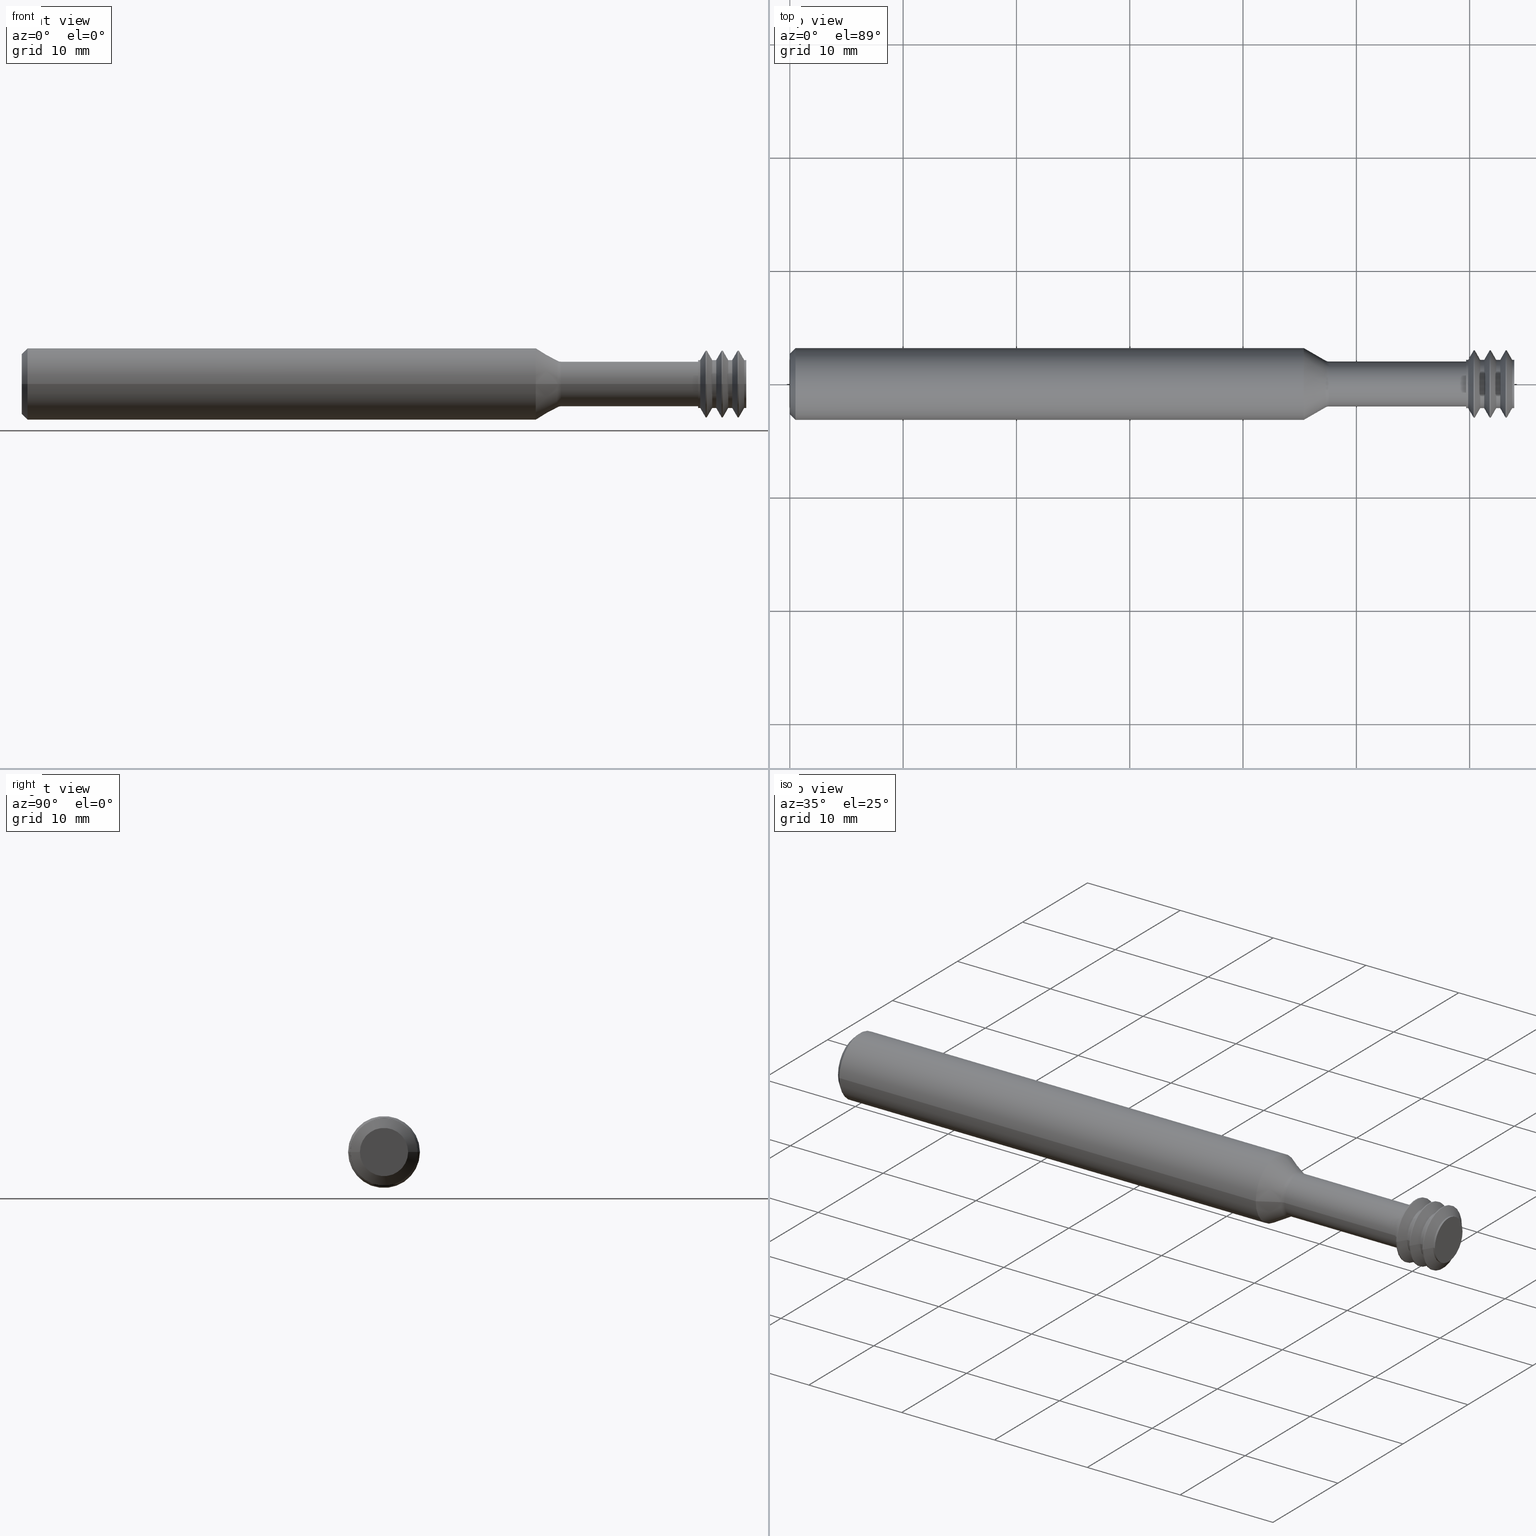
[diagram: canonical four-view strip — front | top / right | iso, engineering-drawing reading convention]
A machine part, canonical four-view strip (front | top / right | iso — engineering-drawing reading convention). The complete STEP part file that produces these views, byte-faithful:
ISO-10303-21;
HEADER;
FILE_DESCRIPTION (( 'STEP AP203' ),
    '1' );
FILE_NAME ('TMLR234-18.STEP',
    '2021-09-14T18:58:29',
    ( '' ),
    ( '' ),
    'SwSTEP 2.0',
    'SolidWorks 2020',
    '' );
FILE_SCHEMA (( 'CONFIG_CONTROL_DESIGN' ));
ENDSEC;

DATA;
#1 = ORIENTED_EDGE ( 'NONE', *, *, #768, .F. ) ;
#2 = LINE ( 'NONE', #961, #390 ) ;
#3 = CARTESIAN_POINT ( 'NONE',  ( 2.510045555555555197, 0.08378605533475004530, 1.026083244788846534E-17 ) ) ;
#4 = ORIENTED_EDGE ( 'NONE', *, *, #692, .T. ) ;
#5 = DIRECTION ( 'NONE',  ( 1.000000000000000000, -2.239313081137374464E-19, 0.000000000000000000 ) ) ;
#6 = EDGE_CURVE ( 'NONE', #660, #29, #99, .T. ) ;
#7 = CIRCLE ( 'NONE', #521, 0.1248500000000000026 ) ;
#8 = FACE_OUTER_BOUND ( 'NONE', #133, .T. ) ;
#9 = CONICAL_SURFACE ( 'NONE', #575, 0.1170000000000000068, 1.051560874326581851 ) ;
#10 = CARTESIAN_POINT ( 'NONE',  ( 2.516989999999999839, -7.632289935742705271E-19, 0.000000000000000000 ) ) ;
#11 = PRODUCT_DEFINITION_FORMATION_WITH_SPECIFIED_SOURCE ( 'ANY', '', #550, .NOT_KNOWN. ) ;
#12 = CIRCLE ( 'NONE', #646, 0.08378605533475004530 ) ;
#13 = ORIENTED_EDGE ( 'NONE', *, *, #681, .F. ) ;
#14 = PERSON_AND_ORGANIZATION ( #376, #293 ) ;
#15 = EDGE_CURVE ( 'NONE', #647, #792, #751, .T. ) ;
#16 = ADVANCED_FACE ( 'NONE', ( #616 ), #940, .T. ) ;
#17 = CYLINDRICAL_SURFACE ( 'NONE', #438, 0.08378605533475004530 ) ;
#18 = EDGE_LOOP ( 'NONE', ( #189, #953, #404, #504 ) ) ;
#19 = ORIENTED_EDGE ( 'NONE', *, *, #191, .F. ) ;
#20 = EDGE_CURVE ( 'NONE', #526, #413, #368, .T. ) ;
#21 = LINE ( 'NONE', #838, #610 ) ;
#22 = ORIENTED_EDGE ( 'NONE', *, *, #20, .T. ) ;
#23 = COORDINATED_UNIVERSAL_TIME_OFFSET ( 8, 0, .BEHIND. ) ;
#24 = CARTESIAN_POINT ( 'NONE',  ( 0.02000000000000005940, -2.040747565273492847E-19, 0.000000000000000000 ) ) ;
#25 = AXIS2_PLACEMENT_3D ( 'NONE', #481, #649, #808 ) ;
#26 = EDGE_CURVE ( 'NONE', #907, #638, #265, .T. ) ;
#27 = APPROVAL_PERSON_ORGANIZATION ( #14, #377, #417 ) ;
#28 = VECTOR ( 'NONE', #821, 39.37007874015748143 ) ;
#29 = VERTEX_POINT ( 'NONE', #775 ) ;
#30 = DIRECTION ( 'NONE',  ( 0.000000000000000000, 1.000000000000000000, 0.000000000000000000 ) ) ;
#31 = DIRECTION ( 'NONE',  ( -1.000000000000000000, 2.239313081137374464E-19, -0.000000000000000000 ) ) ;
#32 = ORIENTED_EDGE ( 'NONE', *, *, #163, .F. ) ;
#33 = DIRECTION ( 'NONE',  ( 0.000000000000000000, -1.000000000000000000, 0.000000000000000000 ) ) ;
#34 = CARTESIAN_POINT ( 'NONE',  ( 2.350000000000000089, -7.258347044323575049E-19, 0.000000000000000000 ) ) ;
#35 = CARTESIAN_POINT ( 'NONE',  ( 2.350000000000000089, 0.1248500000000000026, 1.528971528735470422E-17 ) ) ;
#36 = ORIENTED_EDGE ( 'NONE', *, *, #48, .T. ) ;
#37 = DIRECTION ( 'NONE',  ( -1.000000000000000000, 2.239313081137374464E-19, -0.000000000000000000 ) ) ;
#38 = EDGE_CURVE ( 'NONE', #638, #907, #986, .T. ) ;
#39 = FACE_OUTER_BOUND ( 'NONE', #954, .T. ) ;
#40 = CARTESIAN_POINT ( 'NONE',  ( 2.357267777777777518, -7.274621874172152010E-19, 0.000000000000000000 ) ) ;
#41 = AXIS2_PLACEMENT_3D ( 'NONE', #70, #407, #957 ) ;
#42 = CIRCLE ( 'NONE', #644, 0.1170000000000000207 ) ;
#43 = ORIENTED_EDGE ( 'NONE', *, *, #910, .T. ) ;
#44 = FACE_OUTER_BOUND ( 'NONE', #937, .T. ) ;
#45 = VECTOR ( 'NONE', #635, 39.37007874015748143 ) ;
#46 = EDGE_CURVE ( 'NONE', #792, #647, #12, .T. ) ;
#47 = AXIS2_PLACEMENT_3D ( 'NONE', #534, #861, #1029 ) ;
#48 = EDGE_CURVE ( 'NONE', #352, #154, #194, .T. ) ;
#49 = DIRECTION ( 'NONE',  ( 0.4962165036752096969, -0.8681988144891413794, 1.063236899187653683E-16 ) ) ;
#50 = EDGE_LOOP ( 'NONE', ( #652, #786, #426, #787 ) ) ;
#51 = EDGE_LOOP ( 'NONE', ( #853, #920, #516, #935 ) ) ;
#52 = DIRECTION ( 'NONE',  ( 0.000000000000000000, -1.000000000000000000, 0.000000000000000000 ) ) ;
#53 = CARTESIAN_POINT ( 'NONE',  ( 2.350000000000000089, -7.258347044323575049E-19, 0.000000000000000000 ) ) ;
#54 = EDGE_CURVE ( 'NONE', #82, #791, #334, .T. ) ;
#55 = DIRECTION ( 'NONE',  ( -1.000000000000000000, 2.239313081137374464E-19, -0.000000000000000000 ) ) ;
#56 = ORIENTED_EDGE ( 'NONE', *, *, #1056, .T. ) ;
#57 = FACE_OUTER_BOUND ( 'NONE', #50, .T. ) ;
#58 = DIRECTION ( 'NONE',  ( -1.000000000000000000, 9.873466305187577438E-19, -0.000000000000000000 ) ) ;
#59 = LINE ( 'NONE', #35, #679 ) ;
#60 = ADVANCED_FACE ( 'NONE', ( #202 ), #1055, .T. ) ;
#61 = VERTEX_POINT ( 'NONE', #455 ) ;
#62 = DIRECTION ( 'NONE',  ( -1.000000000000000000, 2.239313081137374464E-19, -0.000000000000000000 ) ) ;
#63 = AXIS2_PLACEMENT_3D ( 'NONE', #360, #190, #33 ) ;
#64 = CIRCLE ( 'NONE', #315, 0.02499999999999986955 ) ;
#65 = VECTOR ( 'NONE', #497, 39.37007874015748143 ) ;
#66 = FACE_OUTER_BOUND ( 'NONE', #439, .T. ) ;
#67 = LINE ( 'NONE', #573, #540 ) ;
#68 = ORIENTED_EDGE ( 'NONE', *, *, #169, .F. ) ;
#69 = DIRECTION ( 'NONE',  ( -1.000000000000000000, 2.239313081137374464E-19, -0.000000000000000000 ) ) ;
#70 = CARTESIAN_POINT ( 'NONE',  ( 2.431806666666666672, -7.441537783114486748E-19, 0.000000000000000000 ) ) ;
#71 = DIRECTION ( 'NONE',  ( 1.000000000000000000, -2.239313081137374464E-19, 0.000000000000000000 ) ) ;
#72 = EDGE_LOOP ( 'NONE', ( #149, #988, #213, #134 ) ) ;
#73 = CARTESIAN_POINT ( 'NONE',  ( 0.02000000000000005940, -2.040747565273492847E-19, 0.000000000000000000 ) ) ;
#74 = DIRECTION ( 'NONE',  ( 0.000000000000000000, -1.000000000000000000, 0.000000000000000000 ) ) ;
#75 = DIRECTION ( 'NONE',  ( 0.000000000000000000, -1.000000000000000000, -1.224646799147353454E-16 ) ) ;
#76 = ORIENTED_EDGE ( 'NONE', *, *, #46, .T. ) ;
#77 = PERSON_AND_ORGANIZATION ( #376, #293 ) ;
#78 = PRODUCT_DEFINITION ( 'UNKNOWN', '', #11, #465 ) ;
#79 = FACE_OUTER_BOUND ( 'NONE', #356, .T. ) ;
#80 = AXIS2_PLACEMENT_3D ( 'NONE', #868, #781, #448 ) ;
#81 = DIRECTION ( 'NONE',  ( -1.000000000000000000, 2.239313081137374464E-19, -0.000000000000000000 ) ) ;
#82 = VERTEX_POINT ( 'NONE', #945 ) ;
#83 = CARTESIAN_POINT ( 'NONE',  ( 2.431806666666666672, -0.1170000000000000068, 1.432836755002403469E-17 ) ) ;
#84 = LINE ( 'NONE', #162, #292 ) ;
#85 = DIRECTION ( 'NONE',  ( -1.000000000000000000, 2.239313081137374464E-19, -0.000000000000000000 ) ) ;
#86 = EDGE_CURVE ( 'NONE', #268, #154, #59, .T. ) ;
#87 = VERTEX_POINT ( 'NONE', #291 ) ;
#88 = APPLICATION_PROTOCOL_DEFINITION ( 'international standard', 'config_control_design', 1994, #359 ) ;
#89 = FACE_OUTER_BOUND ( 'NONE', #512, .T. ) ;
#90 = CARTESIAN_POINT ( 'NONE',  ( 2.566989999999999661, -0.1169999999999999929, 0.000000000000000000 ) ) ;
#91 = CC_DESIGN_PERSON_AND_ORGANIZATION_ASSIGNMENT ( #759, #600, ( #645 ) ) ;
#92 = ORIENTED_EDGE ( 'NONE', *, *, #150, .F. ) ;
#93 = APPROVAL_STATUS ( 'not_yet_approved' ) ;
#94 = CONICAL_SURFACE ( 'NONE', #1030, 0.1170000000000000068, 1.051560874326581851 ) ;
#95 = CYLINDRICAL_SURFACE ( 'NONE', #1013, 0.1248500000000000026 ) ;
#96 = CIRCLE ( 'NONE', #452, 0.08378605533475004530 ) ;
#97 = DIRECTION ( 'NONE',  ( -1.000000000000000000, 2.239313081137374464E-19, -0.000000000000000000 ) ) ;
#98 = AXIS2_PLACEMENT_3D ( 'NONE', #623, #461, #144 ) ;
#99 = CIRCLE ( 'NONE', #80, 0.08378605533475004530 ) ;
#100 = ORIENTED_EDGE ( 'NONE', *, *, #807, .F. ) ;
#101 = ORIENTED_EDGE ( 'NONE', *, *, #38, .F. ) ;
#102 = EDGE_CURVE ( 'NONE', #82, #433, #620, .T. ) ;
#103 = CARTESIAN_POINT ( 'NONE',  ( 2.435506666666666042, 0.1170000000000000207, 1.432836755002403469E-17 ) ) ;
#104 = ORIENTED_EDGE ( 'NONE', *, *, #737, .F. ) ;
#105 = ADVANCED_FACE ( 'NONE', ( #717 ), #362, .T. ) ;
#106 = FACE_OUTER_BOUND ( 'NONE', #398, .T. ) ;
#107 = ORIENTED_EDGE ( 'NONE', *, *, #917, .T. ) ;
#108 = AXIS2_PLACEMENT_3D ( 'NONE', #827, #97, #675 ) ;
#109 = CARTESIAN_POINT ( 'NONE',  ( 1.861198729810778163, -6.163767965912286557E-19, 0.000000000000000000 ) ) ;
#110 = AXIS2_PLACEMENT_3D ( 'NONE', #908, #905, #414 ) ;
#111 = AXIS2_PLACEMENT_3D ( 'NONE', #643, #906, #889 ) ;
#112 = ORIENTED_EDGE ( 'NONE', *, *, #535, .F. ) ;
#113 = EDGE_LOOP ( 'NONE', ( #76, #43, #1014, #576 ) ) ;
#114 = DIRECTION ( 'NONE',  ( -0.000000000000000000, 0.000000000000000000, 1.000000000000000000 ) ) ;
#115 = FACE_OUTER_BOUND ( 'NONE', #995, .T. ) ;
#116 = ORIENTED_EDGE ( 'NONE', *, *, #208, .T. ) ;
#117 = DATE_TIME_ROLE ( 'classification_date' ) ;
#118 = ADVANCED_FACE ( 'NONE', ( #153 ), #397, .T. ) ;
#119 = CARTESIAN_POINT ( 'NONE',  ( 2.350000000000000089, -0.08378605533475004530, 0.000000000000000000 ) ) ;
#120 = DIRECTION ( 'NONE',  ( 1.000000000000000000, 0.000000000000000000, 0.000000000000000000 ) ) ;
#121 = ADVANCED_FACE ( 'NONE', ( #799, #740 ), #1043, .F. ) ;
#122 = ORIENTED_EDGE ( 'NONE', *, *, #505, .T. ) ;
#123 = ORIENTED_EDGE ( 'NONE', *, *, #163, .T. ) ;
#124 = CARTESIAN_POINT ( 'NONE',  ( 2.566989999999999661, 0.1169999999999999929, 1.432836755002403161E-17 ) ) ;
#125 = CARTESIAN_POINT ( 'NONE',  ( 2.454489999999999394, -0.08378605533475004530, 0.000000000000000000 ) ) ;
#126 = ORIENTED_EDGE ( 'NONE', *, *, #752, .T. ) ;
#127 = AXIS2_PLACEMENT_3D ( 'NONE', #1059, #322, #654 ) ;
#128 = ORIENTED_EDGE ( 'NONE', *, *, #281, .T. ) ;
#129 = DIRECTION ( 'NONE',  ( -1.000000000000000000, 2.239313081137374464E-19, -0.000000000000000000 ) ) ;
#130 = AXIS2_PLACEMENT_3D ( 'NONE', #379, #708, #373 ) ;
#131 = EDGE_CURVE ( 'NONE', #222, #741, #294, .T. ) ;
#132 = CARTESIAN_POINT ( 'NONE',  ( 2.510045555555555197, -0.08378605533475004530, 0.000000000000000000 ) ) ;
#133 = EDGE_LOOP ( 'NONE', ( #857, #890, #370, #722 ) ) ;
#134 = ORIENTED_EDGE ( 'NONE', *, *, #131, .F. ) ;
#135 = FACE_OUTER_BOUND ( 'NONE', #547, .T. ) ;
#136 = DIRECTION ( 'NONE',  ( 0.000000000000000000, 1.000000000000000000, 0.000000000000000000 ) ) ;
#137 = DIRECTION ( 'NONE',  ( 0.000000000000000000, -1.000000000000000000, 0.000000000000000000 ) ) ;
#138 = ORIENTED_EDGE ( 'NONE', *, *, #54, .F. ) ;
#139 = CARTESIAN_POINT ( 'NONE',  ( 2.350000000000000089, -7.258347044323575049E-19, 0.000000000000000000 ) ) ;
#140 = CARTESIAN_POINT ( 'NONE',  ( 2.398934444444444036, -0.08378605533475004530, 0.000000000000000000 ) ) ;
#141 = ORIENTED_EDGE ( 'NONE', *, *, #480, .T. ) ;
#142 = CIRCLE ( 'NONE', #470, 0.07800000000000002764 ) ;
#143 = VERTEX_POINT ( 'NONE', #1057 ) ;
#144 = DIRECTION ( 'NONE',  ( 0.000000000000000000, -1.000000000000000000, 0.000000000000000000 ) ) ;
#145 = AXIS2_PLACEMENT_3D ( 'NONE', #273, #173, #422 ) ;
#146 = AXIS2_PLACEMENT_3D ( 'NONE', #24, #919, #835 ) ;
#147 = LINE ( 'NONE', #140, #798 ) ;
#148 = FACE_OUTER_BOUND ( 'NONE', #727, .T. ) ;
#149 = ORIENTED_EDGE ( 'NONE', *, *, #910, .F. ) ;
#150 = EDGE_CURVE ( 'NONE', #283, #810, #1035, .T. ) ;
#151 = CARTESIAN_POINT ( 'NONE',  ( -2.347919765572537244E-20, -0.1048500000000000126, 1.406506848820735372E-17 ) ) ;
#152 = DIRECTION ( 'NONE',  ( -1.000000000000000000, 2.239313081137374464E-19, -0.000000000000000000 ) ) ;
#153 = FACE_OUTER_BOUND ( 'NONE', #72, .T. ) ;
#154 = VERTEX_POINT ( 'NONE', #226 ) ;
#155 = ADVANCED_FACE ( 'NONE', ( #148 ), #969, .F. ) ;
#156 = CARTESIAN_POINT ( 'NONE',  ( 2.350000000000000089, -7.258347044323575049E-19, 0.000000000000000000 ) ) ;
#157 = CARTESIAN_POINT ( 'NONE',  ( 2.431806666666666672, -7.441537783114486748E-19, 0.000000000000000000 ) ) ;
#158 = EDGE_LOOP ( 'NONE', ( #394, #207, #531, #822 ) ) ;
#159 = COORDINATED_UNIVERSAL_TIME_OFFSET ( 8, 0, .BEHIND. ) ;
#160 = AXIS2_PLACEMENT_3D ( 'NONE', #658, #249, #496 ) ;
#161 = VECTOR ( 'NONE', #565, 39.37007874015748143 ) ;
#162 = CARTESIAN_POINT ( 'NONE',  ( 2.398934444444444036, 0.08378605533475004530, 1.026083244788846534E-17 ) ) ;
#163 = EDGE_CURVE ( 'NONE', #350, #433, #487, .T. ) ;
#164 = DIRECTION ( 'NONE',  ( 0.000000000000000000, -1.000000000000000000, 0.000000000000000000 ) ) ;
#165 = ORIENTED_EDGE ( 'NONE', *, *, #657, .T. ) ;
#166 = CARTESIAN_POINT ( 'NONE',  ( 2.376251111111110870, -0.1170000000000000068, 1.432836755002403469E-17 ) ) ;
#167 = CC_DESIGN_DATE_AND_TIME_ASSIGNMENT ( #321, #399, ( #78 ) ) ;
#168 = CARTESIAN_POINT ( 'NONE',  ( 2.454489999999999394, -7.492332868171617621E-19, 0.000000000000000000 ) ) ;
#169 = EDGE_CURVE ( 'NONE', #256, #1039, #804, .T. ) ;
#170 = CARTESIAN_POINT ( 'NONE',  ( 2.350000000000000089, 0.07800000000000002764, 9.552245033349358517E-18 ) ) ;
#171 = VERTEX_POINT ( 'NONE', #3 ) ;
#172 = APPLICATION_PROTOCOL_DEFINITION ( 'international standard', 'config_control_design', 1994, #1051 ) ;
#173 = DIRECTION ( 'NONE',  ( -1.000000000000000000, 2.239313081137374464E-19, -0.000000000000000000 ) ) ;
#174 = DIRECTION ( 'NONE',  ( 0.000000000000000000, -1.000000000000000000, 0.000000000000000000 ) ) ;
#175 = ORIENTED_EDGE ( 'NONE', *, *, #208, .F. ) ;
#176 = CALENDAR_DATE ( 2021, 14, 9 ) ;
#177 = EDGE_CURVE ( 'NONE', #1025, #825, #67, .T. ) ;
#178 = CIRCLE ( 'NONE', #508, 0.1170000000000000207 ) ;
#179 = DIRECTION ( 'NONE',  ( 0.000000000000000000, -1.000000000000000000, 0.000000000000000000 ) ) ;
#180 = AXIS2_PLACEMENT_3D ( 'NONE', #711, #69, #209 ) ;
#181 = CIRCLE ( 'NONE', #779, 0.1170000000000000068 ) ;
#182 = ORIENTED_EDGE ( 'NONE', *, *, #102, .T. ) ;
#183 = ADVANCED_FACE ( 'NONE', ( #477 ), #627, .T. ) ;
#184 = CARTESIAN_POINT ( 'NONE',  ( 1.873698729810777897, -0.07800000000000006928, 0.000000000000000000 ) ) ;
#185 = EDGE_LOOP ( 'NONE', ( #902, #128, #584, #842 ) ) ;
#186 = PERSON_AND_ORGANIZATION_ROLE ( 'creator' ) ;
#187 = CC_DESIGN_PERSON_AND_ORGANIZATION_ASSIGNMENT ( #77, #749, ( #78 ) ) ;
#188 = DIRECTION ( 'NONE',  ( 0.4962165036752096969, -0.8681988144891413794, 1.063236899187653683E-16 ) ) ;
#189 = ORIENTED_EDGE ( 'NONE', *, *, #6, .T. ) ;
#190 = DIRECTION ( 'NONE',  ( -1.000000000000000000, 2.239313081137374464E-19, -0.000000000000000000 ) ) ;
#191 = EDGE_CURVE ( 'NONE', #143, #810, #847, .T. ) ;
#192 = DIRECTION ( 'NONE',  ( 0.000000000000000000, -1.000000000000000000, 0.000000000000000000 ) ) ;
#193 = VECTOR ( 'NONE', #687, 39.37007874015748143 ) ;
#194 = CIRCLE ( 'NONE', #130, 0.1248500000000000026 ) ;
#195 = EDGE_LOOP ( 'NONE', ( #817, #946 ) ) ;
#196 = AXIS2_PLACEMENT_3D ( 'NONE', #572, #640, #881 ) ;
#197 = ORIENTED_EDGE ( 'NONE', *, *, #914, .T. ) ;
#198 = DIRECTION ( 'NONE',  ( 0.000000000000000000, -1.000000000000000000, 0.000000000000000000 ) ) ;
#199 = EDGE_CURVE ( 'NONE', #718, #154, #637, .T. ) ;
#200 = CYLINDRICAL_SURFACE ( 'NONE', #423, 0.1169999999999999929 ) ;
#201 = EDGE_CURVE ( 'NONE', #562, #61, #832, .T. ) ;
#202 = FACE_OUTER_BOUND ( 'NONE', #243, .T. ) ;
#203 = ORIENTED_EDGE ( 'NONE', *, *, #131, .T. ) ;
#204 = FACE_OUTER_BOUND ( 'NONE', #668, .T. ) ;
#205 = CARTESIAN_POINT ( 'NONE',  ( 2.379951111111110684, -0.1170000000000000207, 0.000000000000000000 ) ) ;
#206 = DIRECTION ( 'NONE',  ( 0.000000000000000000, -1.000000000000000000, 0.000000000000000000 ) ) ;
#207 = ORIENTED_EDGE ( 'NONE', *, *, #850, .T. ) ;
#208 = EDGE_CURVE ( 'NONE', #872, #444, #975, .T. ) ;
#209 = DIRECTION ( 'NONE',  ( 0.000000000000000000, -1.000000000000000000, 0.000000000000000000 ) ) ;
#210 = DIRECTION ( 'NONE',  ( 0.000000000000000000, -1.000000000000000000, 0.000000000000000000 ) ) ;
#211 = DIRECTION ( 'NONE',  ( -1.000000000000000000, 2.239313081137374464E-19, -0.000000000000000000 ) ) ;
#212 = VECTOR ( 'NONE', #486, 39.37007874015748143 ) ;
#213 = ORIENTED_EDGE ( 'NONE', *, *, #702, .T. ) ;
#214 = CARTESIAN_POINT ( 'NONE',  ( 2.350000000000000089, -0.07800000000000002764, 0.000000000000000000 ) ) ;
#215 = CIRCLE ( 'NONE', #406, 0.08378605533475004530 ) ;
#216 = DIRECTION ( 'NONE',  ( 0.000000000000000000, -1.000000000000000000, 0.000000000000000000 ) ) ;
#217 = DIRECTION ( 'NONE',  ( 0.4962165036752096969, 0.8681988144891413794, 0.000000000000000000 ) ) ;
#218 = VERTEX_POINT ( 'NONE', #659 ) ;
#219 = DIRECTION ( 'NONE',  ( 0.000000000000000000, -1.000000000000000000, 0.000000000000000000 ) ) ;
#220 = DIRECTION ( 'NONE',  ( 0.000000000000000000, -1.000000000000000000, 0.000000000000000000 ) ) ;
#221 = CARTESIAN_POINT ( 'NONE',  ( 2.294444444444444287, -7.133940762038165303E-19, 0.000000000000000000 ) ) ;
#222 = VERTEX_POINT ( 'NONE', #234 ) ;
#223 = CYLINDRICAL_SURFACE ( 'NONE', #98, 0.1169999999999999929 ) ;
#224 = DIRECTION ( 'NONE',  ( -1.000000000000000000, 2.239313081137374464E-19, -0.000000000000000000 ) ) ;
#225 = EDGE_CURVE ( 'NONE', #562, #810, #318, .T. ) ;
#226 = CARTESIAN_POINT ( 'NONE',  ( 0.02000000000000005940, 0.1248500000000000026, 0.000000000000000000 ) ) ;
#227 = ORIENTED_EDGE ( 'NONE', *, *, #319, .T. ) ;
#228 = LINE ( 'NONE', #639, #436 ) ;
#229 = CIRCLE ( 'NONE', #384, 0.1248500000000000026 ) ;
#230 = VECTOR ( 'NONE', #410, 39.37007874015748143 ) ;
#231 = VECTOR ( 'NONE', #328, 39.37007874015748854 ) ;
#232 = DIRECTION ( 'NONE',  ( -1.000000000000000000, 2.239313081137374464E-19, -0.000000000000000000 ) ) ;
#233 = EDGE_CURVE ( 'NONE', #444, #171, #595, .T. ) ;
#234 = CARTESIAN_POINT ( 'NONE',  ( 2.350000000000000089, 0.08378605533475004530, 1.026083244788846534E-17 ) ) ;
#235 = ORIENTED_EDGE ( 'NONE', *, *, #549, .F. ) ;
#236 = LINE ( 'NONE', #326, #831 ) ;
#237 = CARTESIAN_POINT ( 'NONE',  ( 2.510045555555555197, -7.616739150457028330E-19, 0.000000000000000000 ) ) ;
#238 = ORIENTED_EDGE ( 'NONE', *, *, #15, .F. ) ;
#239 =( NAMED_UNIT ( * ) SI_UNIT ( $, .STERADIAN. ) SOLID_ANGLE_UNIT ( ) );
#240 = EDGE_CURVE ( 'NONE', #287, #478, #715, .T. ) ;
#241 = CARTESIAN_POINT ( 'NONE',  ( 2.376251111111110870, -7.317131500829077002E-19, 0.000000000000000000 ) ) ;
#242 = DIRECTION ( 'NONE',  ( -1.000000000000000000, 9.873466305187577438E-19, -0.000000000000000000 ) ) ;
#243 = EDGE_LOOP ( 'NONE', ( #261, #387, #677, #342 ) ) ;
#244 = PERSON_AND_ORGANIZATION ( #376, #293 ) ;
#245 = VECTOR ( 'NONE', #896, 39.37007874015748143 ) ;
#246 = TOROIDAL_SURFACE ( 'NONE', #145, 0.1029999999999999943, 0.02499999999999994588 ) ;
#247 = AXIS2_PLACEMENT_3D ( 'NONE', #942, #878, #52 ) ;
#248 = AXIS2_PLACEMENT_3D ( 'NONE', #809, #583, #1048 ) ;
#249 = DIRECTION ( 'NONE',  ( 1.000000000000000000, -2.239313081137374464E-19, 0.000000000000000000 ) ) ;
#250 = CIRCLE ( 'NONE', #507, 0.1048500000000000126 ) ;
#251 = DIMENSIONAL_EXPONENTS ( 1.000000000000000000, 0.000000000000000000, 0.000000000000000000, 0.000000000000000000, 0.000000000000000000, 0.000000000000000000, 0.000000000000000000 ) ;
#252 = DIRECTION ( 'NONE',  ( 0.000000000000000000, -1.000000000000000000, 0.000000000000000000 ) ) ;
#253 = ORIENTED_EDGE ( 'NONE', *, *, #549, .T. ) ;
#254 = DIRECTION ( 'NONE',  ( 0.000000000000000000, -1.000000000000000000, 0.000000000000000000 ) ) ;
#255 = DIRECTION ( 'NONE',  ( -1.000000000000000000, 9.873466305187577438E-19, -0.000000000000000000 ) ) ;
#256 = VERTEX_POINT ( 'NONE', #392 ) ;
#257 = LENGTH_MEASURE_WITH_UNIT ( LENGTH_MEASURE( 0.02539999999999999897 ), #331 );
#258 = ADVANCED_BREP_SHAPE_REPRESENTATION ( 'TMLR234-18', ( #785, #578 ), #931 ) ;
#259 = DIRECTION ( 'NONE',  ( 0.000000000000000000, 0.000000000000000000, 1.000000000000000000 ) ) ;
#260 = EDGE_CURVE ( 'NONE', #791, #1039, #962, .T. ) ;
#261 = ORIENTED_EDGE ( 'NONE', *, *, #592, .F. ) ;
#262 = ORIENTED_EDGE ( 'NONE', *, *, #752, .F. ) ;
#263 = AXIS2_PLACEMENT_3D ( 'NONE', #492, #729, #476 ) ;
#264 = CARTESIAN_POINT ( 'NONE',  ( 2.510045555555555197, 0.08378605533475004530, 1.026083244788846534E-17 ) ) ;
#265 = CIRCLE ( 'NONE', #816, 0.08378605533475004530 ) ;
#266 = ORIENTED_EDGE ( 'NONE', *, *, #319, .F. ) ;
#267 = DIRECTION ( 'NONE',  ( 1.000000000000000000, -2.239313081137374464E-19, 0.000000000000000000 ) ) ;
#268 = VERTEX_POINT ( 'NONE', #415 ) ;
#269 = DIRECTION ( 'NONE',  ( -1.000000000000000000, 2.239313081137374464E-19, -0.000000000000000000 ) ) ;
#270 = ADVANCED_FACE ( 'NONE', ( #106 ), #386, .T. ) ;
#271 = CARTESIAN_POINT ( 'NONE',  ( 2.516989999999999839, 0.08378605533475004530, 1.026083244788846534E-17 ) ) ;
#272 = ORIENTED_EDGE ( 'NONE', *, *, #20, .F. ) ;
#273 = CARTESIAN_POINT ( 'NONE',  ( 1.873698729810777897, 0.000000000000000000, 0.000000000000000000 ) ) ;
#274 = EDGE_CURVE ( 'NONE', #218, #29, #337, .T. ) ;
#275 = DIRECTION ( 'NONE',  ( -2.239313081137374464E-19, -1.000000000000000000, 0.000000000000000000 ) ) ;
#276 = AXIS2_PLACEMENT_3D ( 'NONE', #605, #37, #198 ) ;
#277 = DIRECTION ( 'NONE',  ( 0.000000000000000000, -1.000000000000000000, 0.000000000000000000 ) ) ;
#278 = ORIENTED_EDGE ( 'NONE', *, *, #260, .T. ) ;
#279 = LINE ( 'NONE', #683, #193 ) ;
#280 = DIRECTION ( 'NONE',  ( 0.000000000000000000, -1.000000000000000000, 0.000000000000000000 ) ) ;
#281 = EDGE_CURVE ( 'NONE', #218, #87, #215, .T. ) ;
#282 = EDGE_LOOP ( 'NONE', ( #699, #203 ) ) ;
#283 = VERTEX_POINT ( 'NONE', #184 ) ;
#284 = CYLINDRICAL_SURFACE ( 'NONE', #509, 0.08378605533475004530 ) ;
#285 = CYLINDRICAL_SURFACE ( 'NONE', #1012, 0.1169999999999999929 ) ;
#286 = CARTESIAN_POINT ( 'NONE',  ( 2.379951111111110684, -7.325416959229284810E-19, 0.000000000000000000 ) ) ;
#287 = VERTEX_POINT ( 'NONE', #667 ) ;
#288 = LINE ( 'NONE', #705, #966 ) ;
#289 = CARTESIAN_POINT ( 'NONE',  ( 2.487362222222222030, 0.1170000000000000068, 0.000000000000000000 ) ) ;
#290 = CC_DESIGN_PERSON_AND_ORGANIZATION_ASSIGNMENT ( #430, #186, ( #11 ) ) ;
#291 = CARTESIAN_POINT ( 'NONE',  ( 2.468378888888888678, -0.08378605533475004530, 1.229459999895625156E-17 ) ) ;
#292 = VECTOR ( 'NONE', #400, 39.37007874015748143 ) ;
#293 = ORGANIZATION ( 'UNSPECIFIED', 'UNSPECIFIED', '' ) ;
#294 = CIRCLE ( 'NONE', #473, 0.08378605533475004530 ) ;
#295 = VERTEX_POINT ( 'NONE', #271 ) ;
#296 = FACE_OUTER_BOUND ( 'NONE', #474, .T. ) ;
#297 = AXIS2_PLACEMENT_3D ( 'NONE', #109, #1003, #174 ) ;
#298 = CARTESIAN_POINT ( 'NONE',  ( 0.000000000000000000, -1.995961303650745011E-19, 0.000000000000000000 ) ) ;
#299 = CARTESIAN_POINT ( 'NONE',  ( 2.357267777777777518, -7.274621874172152010E-19, 0.000000000000000000 ) ) ;
#300 = ORIENTED_EDGE ( 'NONE', *, *, #622, .T. ) ;
#301 = DIRECTION ( 'NONE',  ( -1.000000000000000000, 2.239313081137374464E-19, -0.000000000000000000 ) ) ;
#302 = EDGE_CURVE ( 'NONE', #171, #1049, #511, .T. ) ;
#303 = CARTESIAN_POINT ( 'NONE',  ( 2.183333333333333570, -0.08378605533475004530, 0.000000000000000000 ) ) ;
#304 = CARTESIAN_POINT ( 'NONE',  ( 1.873698729810777897, -6.191759379426502932E-19, 0.000000000000000000 ) ) ;
#305 = ORIENTED_EDGE ( 'NONE', *, *, #724, .F. ) ;
#306 = CARTESIAN_POINT ( 'NONE',  ( 2.398934444444444036, -0.08378605533475004530, 0.000000000000000000 ) ) ;
#307 = EDGE_CURVE ( 'NONE', #825, #597, #181, .T. ) ;
#308 = DIRECTION ( 'NONE',  ( 0.000000000000000000, 1.000000000000000000, 0.000000000000000000 ) ) ;
#309 = DIRECTION ( 'NONE',  ( 0.000000000000000000, 1.000000000000000000, 0.000000000000000000 ) ) ;
#310 = UNCERTAINTY_MEASURE_WITH_UNIT (LENGTH_MEASURE( 1.000000000000000082E-05 ), #973, 'distance_accuracy_value', 'NONE');
#311 = CONICAL_SURFACE ( 'NONE', #915, 0.08134936490538911824, 0.5235987755983014802 ) ;
#312 = ORIENTED_EDGE ( 'NONE', *, *, #642, .F. ) ;
#313 = CARTESIAN_POINT ( 'NONE',  ( 2.491062222222221845, -0.1170000000000000207, 0.000000000000000000 ) ) ;
#314 = AXIS2_PLACEMENT_3D ( 'NONE', #73, #5, #585 ) ;
#315 = AXIS2_PLACEMENT_3D ( 'NONE', #395, #1032, #723 ) ;
#316 = VECTOR ( 'NONE', #188, 39.37007874015748143 ) ;
#317 = FACE_OUTER_BOUND ( 'NONE', #800, .T. ) ;
#318 = LINE ( 'NONE', #170, #161 ) ;
#319 = EDGE_CURVE ( 'NONE', #413, #287, #603, .T. ) ;
#320 = ORIENTED_EDGE ( 'NONE', *, *, #169, .T. ) ;
#321 = DATE_AND_TIME ( #506, #815 ) ;
#322 = DIRECTION ( 'NONE',  ( -1.000000000000000000, 2.239313081137374464E-19, -0.000000000000000000 ) ) ;
#323 = CARTESIAN_POINT ( 'NONE',  ( 0.02000000000000005940, 0.1248500000000000026, 0.000000000000000000 ) ) ;
#324 = ORIENTED_EDGE ( 'NONE', *, *, #1047, .T. ) ;
#325 = ADVANCED_FACE ( 'NONE', ( #424 ), #987, .T. ) ;
#326 = CARTESIAN_POINT ( 'NONE',  ( 2.566989999999999661, 0.1169999999999999929, 1.432836755002403161E-17 ) ) ;
#327 = CARTESIAN_POINT ( 'NONE',  ( 1.861198729810778163, 0.08134936490538911824, 9.962423934405481643E-18 ) ) ;
#328 = DIRECTION ( 'NONE',  ( 0.7071067811865486830, 0.7071067811865462405, 0.000000000000000000 ) ) ;
#329 = CC_DESIGN_PERSON_AND_ORGANIZATION_ASSIGNMENT ( #244, #500, ( #550 ) ) ;
#330 = ORIENTED_EDGE ( 'NONE', *, *, #670, .T. ) ;
#331 =( LENGTH_UNIT ( ) NAMED_UNIT ( * ) SI_UNIT ( $, .METRE. ) );
#332 = AXIS2_PLACEMENT_3D ( 'NONE', #666, #269, #753 ) ;
#333 = CONICAL_SURFACE ( 'NONE', #1034, 0.08378605533475004530, 1.051560874326582073 ) ;
#334 = CIRCLE ( 'NONE', #349, 0.08378605533475004530 ) ;
#335 = DIRECTION ( 'NONE',  ( 1.000000000000000000, -2.239313081137374464E-19, 0.000000000000000000 ) ) ;
#336 = AXIS2_PLACEMENT_3D ( 'NONE', #348, #680, #179 ) ;
#337 = LINE ( 'NONE', #841, #65 ) ;
#338 = ORIENTED_EDGE ( 'NONE', *, *, #850, .F. ) ;
#339 = ADVANCED_FACE ( 'NONE', ( #515 ), #757, .T. ) ;
#340 = DIRECTION ( 'NONE',  ( 0.000000000000000000, 1.000000000000000000, 0.000000000000000000 ) ) ;
#341 = ORIENTED_EDGE ( 'NONE', *, *, #351, .T. ) ;
#342 = ORIENTED_EDGE ( 'NONE', *, *, #451, .F. ) ;
#343 = EDGE_CURVE ( 'NONE', #872, #295, #525, .T. ) ;
#344 = EDGE_CURVE ( 'NONE', #791, #82, #879, .T. ) ;
#345 = DIRECTION ( 'NONE',  ( -0.4962165036752094749, 0.8681988144891416015, 1.063236899187653930E-16 ) ) ;
#346 = EDGE_LOOP ( 'NONE', ( #518, #894, #877, #312 ) ) ;
#347 = COORDINATED_UNIVERSAL_TIME_OFFSET ( 8, 0, .BEHIND. ) ;
#348 = CARTESIAN_POINT ( 'NONE',  ( 2.412823333333333320, -7.399028156457561756E-19, 0.000000000000000000 ) ) ;
#349 = AXIS2_PLACEMENT_3D ( 'NONE', #611, #703, #633 ) ;
#350 = VERTEX_POINT ( 'NONE', #103 ) ;
#351 = EDGE_CURVE ( 'NONE', #834, #143, #901, .T. ) ;
#352 = VERTEX_POINT ( 'NONE', #502 ) ;
#353 = CARTESIAN_POINT ( 'NONE',  ( 1.861198729810778163, -0.08134936490538911824, 0.000000000000000000 ) ) ;
#354 = DIRECTION ( 'NONE',  ( -1.000000000000000000, 2.239313081137374464E-19, -0.000000000000000000 ) ) ;
#355 = EDGE_CURVE ( 'NONE', #29, #350, #21, .T. ) ;
#356 = EDGE_LOOP ( 'NONE', ( #434, #165, #141, #13 ) ) ;
#357 = PERSON_AND_ORGANIZATION_ROLE ( 'design_supplier' ) ;
#358 = EDGE_CURVE ( 'NONE', #256, #350, #365, .T. ) ;
#359 = APPLICATION_CONTEXT ( 'configuration controlled 3d designs of mechanical parts and assemblies' ) ;
#360 = CARTESIAN_POINT ( 'NONE',  ( 2.468378888888888678, -7.523434438742970539E-19, 0.000000000000000000 ) ) ;
#361 = FACE_OUTER_BOUND ( 'NONE', #672, .T. ) ;
#362 = CYLINDRICAL_SURFACE ( 'NONE', #932, 0.08378605533475004530 ) ;
#363 = PLANE ( 'NONE',  #606 ) ;
#364 = EDGE_CURVE ( 'NONE', #61, #562, #142, .T. ) ;
#365 = CIRCLE ( 'NONE', #108, 0.1170000000000000207 ) ;
#366 = CARTESIAN_POINT ( 'NONE',  ( 2.238888888888888928, -7.009534479752756520E-19, 0.000000000000000000 ) ) ;
#367 = AXIS2_PLACEMENT_3D ( 'NONE', #630, #62, #806 ) ;
#368 = CIRCLE ( 'NONE', #1002, 0.1170000000000000207 ) ;
#369 = DIRECTION ( 'NONE',  ( -1.000000000000000000, 2.239313081137374464E-19, -0.000000000000000000 ) ) ;
#370 = ORIENTED_EDGE ( 'NONE', *, *, #48, .F. ) ;
#371 = LINE ( 'NONE', #788, #558 ) ;
#372 = CARTESIAN_POINT ( 'NONE',  ( 2.379951111111110684, 0.1170000000000000207, 1.432836755002403469E-17 ) ) ;
#373 = DIRECTION ( 'NONE',  ( 0.000000000000000000, -1.000000000000000000, 0.000000000000000000 ) ) ;
#374 = ORIENTED_EDGE ( 'NONE', *, *, #225, .F. ) ;
#375 = CARTESIAN_POINT ( 'NONE',  ( 2.350000000000000089, 0.08378605533475004530, 1.026083244788846534E-17 ) ) ;
#376 = PERSON ( 'UNSPECIFIED', 'UNSPECIFIED', 'UNSPECIFIED', ('UNSPECIFIED'), ('UNSPECIFIED'), ('UNSPECIFIED') ) ;
#377 = APPROVAL ( #93, 'UNSPECIFIED' ) ;
#378 = LINE ( 'NONE', #125, #693 ) ;
#379 = CARTESIAN_POINT ( 'NONE',  ( 0.02000000000000005940, -2.040747565273492847E-19, 0.000000000000000000 ) ) ;
#380 = ORIENTED_EDGE ( 'NONE', *, *, #201, .F. ) ;
#381 = DIRECTION ( 'NONE',  ( -1.000000000000000000, 2.239313081137374464E-19, -0.000000000000000000 ) ) ;
#382 = FACE_OUTER_BOUND ( 'NONE', #1021, .T. ) ;
#383 = CARTESIAN_POINT ( 'NONE',  ( 2.431806666666666672, 0.1170000000000000068, 0.000000000000000000 ) ) ;
#384 = AXIS2_PLACEMENT_3D ( 'NONE', #554, #700, #1045 ) ;
#385 = CC_DESIGN_APPROVAL ( #377, ( #78 ) ) ;
#386 = CONICAL_SURFACE ( 'NONE', #523, 0.1170000000000000068, 1.051560874326581851 ) ;
#387 = ORIENTED_EDGE ( 'NONE', *, *, #1041, .T. ) ;
#388 = ADVANCED_FACE ( 'NONE', ( #671 ), #17, .T. ) ;
#389 = LINE ( 'NONE', #375, #984 ) ;
#390 = VECTOR ( 'NONE', #152, 39.37007874015748143 ) ;
#391 = CARTESIAN_POINT ( 'NONE',  ( 2.398934444444444036, 0.08378605533475004530, 1.229459999895625156E-17 ) ) ;
#392 = CARTESIAN_POINT ( 'NONE',  ( 2.435506666666666042, -0.1170000000000000207, 0.000000000000000000 ) ) ;
#393 = ADVANCED_FACE ( 'NONE', ( #517 ), #437, .T. ) ;
#394 = ORIENTED_EDGE ( 'NONE', *, *, #709, .T. ) ;
#395 = CARTESIAN_POINT ( 'NONE',  ( 1.873698729810777897, -0.1029999999999999943, 0.000000000000000000 ) ) ;
#396 = DIRECTION ( 'NONE',  ( -1.000000000000000000, 2.239313081137374464E-19, -0.000000000000000000 ) ) ;
#397 = CYLINDRICAL_SURFACE ( 'NONE', #491, 0.08378605533475004530 ) ;
#398 = EDGE_LOOP ( 'NONE', ( #748, #138, #182, #253 ) ) ;
#399 = DATE_TIME_ROLE ( 'creation_date' ) ;
#400 = DIRECTION ( 'NONE',  ( -0.4962165036752094749, 0.8681988144891416015, 1.063236899187653930E-16 ) ) ;
#401 = ADVANCED_FACE ( 'NONE', ( #39 ), #934, .T. ) ;
#402 = CARTESIAN_POINT ( 'NONE',  ( 2.350000000000000089, -5.262385740672830520E-19, 0.000000000000000000 ) ) ;
#403 = VECTOR ( 'NONE', #581, 39.37007874015748143 ) ;
#404 = ORIENTED_EDGE ( 'NONE', *, *, #358, .F. ) ;
#405 = DATE_AND_TIME ( #176, #882 ) ;
#406 = AXIS2_PLACEMENT_3D ( 'NONE', #909, #997, #428 ) ;
#407 = DIRECTION ( 'NONE',  ( -1.000000000000000000, 2.239313081137374464E-19, -0.000000000000000000 ) ) ;
#408 = CARTESIAN_POINT ( 'NONE',  ( 2.566989999999999661, -0.1169999999999999929, 0.000000000000000000 ) ) ;
#409 = ORIENTED_EDGE ( 'NONE', *, *, #1018, .T. ) ;
#410 = DIRECTION ( 'NONE',  ( 0.4962165036752096969, -0.8681988144891413794, 1.063236899187653683E-16 ) ) ;
#411 = CARTESIAN_POINT ( 'NONE',  ( 2.510045555555555197, -7.616739150457028330E-19, 0.000000000000000000 ) ) ;
#412 = DIRECTION ( 'NONE',  ( 1.000000000000000000, -2.239313081137374464E-19, 0.000000000000000000 ) ) ;
#413 = VERTEX_POINT ( 'NONE', #205 ) ;
#414 = DIRECTION ( 'NONE',  ( 2.239313081137374464E-19, 1.000000000000000000, 0.000000000000000000 ) ) ;
#415 = CARTESIAN_POINT ( 'NONE',  ( 1.785853419665398789, 0.1248500000000000026, 1.528971528735470422E-17 ) ) ;
#416 = ORIENTED_EDGE ( 'NONE', *, *, #225, .T. ) ;
#417 = APPROVAL_ROLE ( '' ) ;
#418 = AXIS2_PLACEMENT_3D ( 'NONE', #366, #707, #524 ) ;
#419 = ADVANCED_FACE ( 'NONE', ( #361 ), #952, .T. ) ;
#420 = AXIS2_PLACEMENT_3D ( 'NONE', #237, #396, #74 ) ;
#421 = VECTOR ( 'NONE', #217, 39.37007874015748143 ) ;
#422 = DIRECTION ( 'NONE',  ( -2.239313081137374464E-19, -1.000000000000000000, 0.000000000000000000 ) ) ;
#423 = AXIS2_PLACEMENT_3D ( 'NONE', #871, #867, #216 ) ;
#424 = FACE_OUTER_BOUND ( 'NONE', #601, .T. ) ;
#425 = ORIENTED_EDGE ( 'NONE', *, *, #885, .F. ) ;
#426 = ORIENTED_EDGE ( 'NONE', *, *, #709, .F. ) ;
#427 = EDGE_CURVE ( 'NONE', #444, #1025, #713, .T. ) ;
#428 = DIRECTION ( 'NONE',  ( 0.000000000000000000, -1.000000000000000000, 0.000000000000000000 ) ) ;
#429 = ORIENTED_EDGE ( 'NONE', *, *, #614, .F. ) ;
#430 = PERSON_AND_ORGANIZATION ( #376, #293 ) ;
#431 = ADVANCED_FACE ( 'NONE', ( #860 ), #200, .T. ) ;
#432 = CARTESIAN_POINT ( 'NONE',  ( 2.431806666666666672, -7.441537783114486748E-19, 0.000000000000000000 ) ) ;
#433 = VERTEX_POINT ( 'NONE', #545 ) ;
#434 = ORIENTED_EDGE ( 'NONE', *, *, #355, .F. ) ;
#435 = CIRCLE ( 'NONE', #63, 0.08378605533475004530 ) ;
#436 = VECTOR ( 'NONE', #874, 39.37007874015748143 ) ;
#437 = CYLINDRICAL_SURFACE ( 'NONE', #641, 0.07800000000000002764 ) ;
#438 = AXIS2_PLACEMENT_3D ( 'NONE', #598, #354, #922 ) ;
#439 = EDGE_LOOP ( 'NONE', ( #772, #1044, #685, #305 ) ) ;
#440 = APPROVAL_DATE_TIME ( #837, #503 ) ;
#441 = EDGE_LOOP ( 'NONE', ( #976, #570 ) ) ;
#442 = CARTESIAN_POINT ( 'NONE',  ( 2.487362222222222030, -7.565944065399895531E-19, 0.000000000000000000 ) ) ;
#443 = DIRECTION ( 'NONE',  ( -1.000000000000000000, 2.239313081137374464E-19, -0.000000000000000000 ) ) ;
#444 = VERTEX_POINT ( 'NONE', #132 ) ;
#445 = ORIENTED_EDGE ( 'NONE', *, *, #427, .T. ) ;
#446 = CARTESIAN_POINT ( 'NONE',  ( 0.000000000000000000, -1.995961303650745011E-19, 0.000000000000000000 ) ) ;
#447 = DIRECTION ( 'NONE',  ( 0.000000000000000000, -1.000000000000000000, 0.000000000000000000 ) ) ;
#448 = DIRECTION ( 'NONE',  ( 0.000000000000000000, -1.000000000000000000, 0.000000000000000000 ) ) ;
#449 = ORIENTED_EDGE ( 'NONE', *, *, #307, .T. ) ;
#450 = DIRECTION ( 'NONE',  ( -1.000000000000000000, 9.873466305187577438E-19, -0.000000000000000000 ) ) ;
#451 = EDGE_CURVE ( 'NONE', #268, #1058, #7, .T. ) ;
#452 = AXIS2_PLACEMENT_3D ( 'NONE', #411, #232, #720 ) ;
#453 = DIRECTION ( 'NONE',  ( -0.4962165036752094749, -0.8681988144891416015, 0.000000000000000000 ) ) ;
#454 = AXIS2_PLACEMENT_3D ( 'NONE', #304, #884, #726 ) ;
#455 = CARTESIAN_POINT ( 'NONE',  ( 2.350000000000000089, -0.07800000000000002764, 0.000000000000000000 ) ) ;
#456 = ORIENTED_EDGE ( 'NONE', *, *, #1001, .F. ) ;
#457 = DIRECTION ( 'NONE',  ( 0.000000000000000000, -1.000000000000000000, 0.000000000000000000 ) ) ;
#458 = DIRECTION ( 'NONE',  ( -1.000000000000000000, 2.239313081137374464E-19, -0.000000000000000000 ) ) ;
#459 = DIRECTION ( 'NONE',  ( -1.000000000000000000, 2.239313081137374464E-19, -0.000000000000000000 ) ) ;
#460 = EDGE_LOOP ( 'NONE', ( #674, #22, #227, #766 ) ) ;
#461 = DIRECTION ( 'NONE',  ( -1.000000000000000000, 9.873466305187577438E-19, -0.000000000000000000 ) ) ;
#462 = LINE ( 'NONE', #780, #965 ) ;
#463 = ADVANCED_FACE ( 'NONE', ( #382 ), #1010, .T. ) ;
#464 = DIRECTION ( 'NONE',  ( -1.000000000000000000, 2.239313081137374464E-19, -0.000000000000000000 ) ) ;
#465 = DESIGN_CONTEXT ( 'detailed design', #359, 'design' ) ;
#466 = ORIENTED_EDGE ( 'NONE', *, *, #505, .F. ) ;
#467 = CARTESIAN_POINT ( 'NONE',  ( 2.491062222222221845, -7.574229523800104302E-19, 0.000000000000000000 ) ) ;
#468 = DIRECTION ( 'NONE',  ( -1.000000000000000000, 2.239313081137374464E-19, -0.000000000000000000 ) ) ;
#469 = ADVANCED_FACE ( 'NONE', ( #115 ), #625, .T. ) ;
#470 = AXIS2_PLACEMENT_3D ( 'NONE', #754, #267, #340 ) ;
#471 = DIRECTION ( 'NONE',  ( 0.000000000000000000, -1.000000000000000000, 0.000000000000000000 ) ) ;
#472 = CIRCLE ( 'NONE', #1033, 0.08378605533475004530 ) ;
#473 = AXIS2_PLACEMENT_3D ( 'NONE', #493, #731, #651 ) ;
#474 = EDGE_LOOP ( 'NONE', ( #112, #519, #536, #175 ) ) ;
#475 = LINE ( 'NONE', #214, #866 ) ;
#476 = DIRECTION ( 'NONE',  ( 0.000000000000000000, -1.000000000000000000, 0.000000000000000000 ) ) ;
#477 = FACE_OUTER_BOUND ( 'NONE', #494, .T. ) ;
#478 = VERTEX_POINT ( 'NONE', #784 ) ;
#479 = DIRECTION ( 'NONE',  ( 0.000000000000000000, 1.000000000000000000, 0.000000000000000000 ) ) ;
#480 = EDGE_CURVE ( 'NONE', #660, #256, #378, .T. ) ;
#481 = CARTESIAN_POINT ( 'NONE',  ( 2.454489999999999394, -7.492332868171617621E-19, 0.000000000000000000 ) ) ;
#482 = DIRECTION ( 'NONE',  ( 2.239313081137374464E-19, 1.000000000000000000, 0.000000000000000000 ) ) ;
#483 = EDGE_LOOP ( 'NONE', ( #466, #911, #873, #621 ) ) ;
#484 = DIRECTION ( 'NONE',  ( 0.000000000000000000, 0.000000000000000000, 1.000000000000000000 ) ) ;
#485 = EDGE_CURVE ( 'NONE', #218, #597, #790, .T. ) ;
#486 = DIRECTION ( 'NONE',  ( 0.4962165036752096969, 0.8681988144891413794, 0.000000000000000000 ) ) ;
#487 = LINE ( 'NONE', #893, #951 ) ;
#488 = VECTOR ( 'NONE', #450, 39.37007874015748143 ) ;
#489 = ORIENTED_EDGE ( 'NONE', *, *, #485, .F. ) ;
#490 = FACE_OUTER_BOUND ( 'NONE', #51, .T. ) ;
#491 = AXIS2_PLACEMENT_3D ( 'NONE', #655, #85, #252 ) ;
#492 = CARTESIAN_POINT ( 'NONE',  ( 0.02000000000000005940, -2.040747565273492847E-19, 0.000000000000000000 ) ) ;
#493 = CARTESIAN_POINT ( 'NONE',  ( 2.350000000000000089, -7.258347044323575049E-19, 0.000000000000000000 ) ) ;
#494 = EDGE_LOOP ( 'NONE', ( #963, #278, #829, #805 ) ) ;
#495 = CARTESIAN_POINT ( 'NONE',  ( 1.785853419665398789, -0.1248500000000000026, 0.000000000000000000 ) ) ;
#496 = DIRECTION ( 'NONE',  ( 0.000000000000000000, 1.000000000000000000, 0.000000000000000000 ) ) ;
#497 = DIRECTION ( 'NONE',  ( -1.000000000000000000, 2.239313081137374464E-19, -0.000000000000000000 ) ) ;
#498 = ADVANCED_FACE ( 'NONE', ( #939 ), #94, .T. ) ;
#499 = ORIENTED_EDGE ( 'NONE', *, *, #240, .T. ) ;
#500 = PERSON_AND_ORGANIZATION_ROLE ( 'design_owner' ) ;
#501 = CARTESIAN_POINT ( 'NONE',  ( 2.347919765572537244E-20, 0.1048500000000000126, 0.000000000000000000 ) ) ;
#502 = CARTESIAN_POINT ( 'NONE',  ( 0.02000000000000005940, -0.1248500000000000026, 1.528971528735470422E-17 ) ) ;
#503 = APPROVAL ( #653, 'UNSPECIFIED' ) ;
#504 = ORIENTED_EDGE ( 'NONE', *, *, #480, .F. ) ;
#505 = EDGE_CURVE ( 'NONE', #87, #825, #462, .T. ) ;
#506 = CALENDAR_DATE ( 2021, 14, 9 ) ;
#507 = AXIS2_PLACEMENT_3D ( 'NONE', #298, #688, #275 ) ;
#508 = AXIS2_PLACEMENT_3D ( 'NONE', #467, #129, #1027 ) ;
#509 = AXIS2_PLACEMENT_3D ( 'NONE', #139, #947, #783 ) ;
#510 = VECTOR ( 'NONE', #814, 39.37007874015748143 ) ;
#511 = LINE ( 'NONE', #264, #663 ) ;
#512 = EDGE_LOOP ( 'NONE', ( #553, #758 ) ) ;
#513 = APPROVAL_ROLE ( '' ) ;
#514 = EDGE_CURVE ( 'NONE', #718, #928, #250, .T. ) ;
#515 = FACE_OUTER_BOUND ( 'NONE', #972, .T. ) ;
#516 = ORIENTED_EDGE ( 'NONE', *, *, #199, .T. ) ;
#517 = FACE_OUTER_BOUND ( 'NONE', #1004, .T. ) ;
#518 = ORIENTED_EDGE ( 'NONE', *, *, #86, .F. ) ;
#519 = ORIENTED_EDGE ( 'NONE', *, *, #904, .T. ) ;
#520 = CARTESIAN_POINT ( 'NONE',  ( 2.350000000000000089, -7.258347044323575049E-19, 0.000000000000000000 ) ) ;
#521 = AXIS2_PLACEMENT_3D ( 'NONE', #701, #632, #447 ) ;
#522 = CIRCLE ( 'NONE', #747, 0.1170000000000000068 ) ;
#523 = AXIS2_PLACEMENT_3D ( 'NONE', #432, #927, #1007 ) ;
#524 = DIRECTION ( 'NONE',  ( 0.000000000000000000, -1.000000000000000000, 0.000000000000000000 ) ) ;
#525 = CIRCLE ( 'NONE', #716, 0.08378605533475004530 ) ;
#526 = VERTEX_POINT ( 'NONE', #372 ) ;
#527 = CARTESIAN_POINT ( 'NONE',  ( 2.487362222222222030, -7.565944065399895531E-19, 0.000000000000000000 ) ) ;
#528 = DIRECTION ( 'NONE',  ( 0.4962165036752096969, 0.8681988144891413794, 0.000000000000000000 ) ) ;
#529 = CARTESIAN_POINT ( 'NONE',  ( 2.566989999999999661, -7.258347044323575049E-19, 0.000000000000000000 ) ) ;
#530 = ADVANCED_FACE ( 'NONE', ( #1024 ), #849, .T. ) ;
#531 = ORIENTED_EDGE ( 'NONE', *, *, #307, .F. ) ;
#532 = FACE_OUTER_BOUND ( 'NONE', #18, .T. ) ;
#533 = DIRECTION ( 'NONE',  ( -0.4962165036752094749, -0.8681988144891416015, 0.000000000000000000 ) ) ;
#534 = CARTESIAN_POINT ( 'NONE',  ( 1.861198729810778163, -6.163767965912286557E-19, 0.000000000000000000 ) ) ;
#535 = EDGE_CURVE ( 'NONE', #295, #872, #574, .T. ) ;
#536 = ORIENTED_EDGE ( 'NONE', *, *, #233, .F. ) ;
#537 = FACE_OUTER_BOUND ( 'NONE', #941, .T. ) ;
#538 = CIRCLE ( 'NONE', #25, 0.08378605533475004530 ) ;
#539 = DIRECTION ( 'NONE',  ( -1.000000000000000000, 9.873466305187577438E-19, -0.000000000000000000 ) ) ;
#540 = VECTOR ( 'NONE', #557, 39.37007874015748143 ) ;
#541 = DIRECTION ( 'NONE',  ( -1.000000000000000000, 9.873466305187577438E-19, -0.000000000000000000 ) ) ;
#542 = EDGE_LOOP ( 'NONE', ( #341, #710, #425, #588 ) ) ;
#543 = DIRECTION ( 'NONE',  ( 1.000000000000000000, -2.239313081137374464E-19, 0.000000000000000000 ) ) ;
#544 = ADVANCED_FACE ( 'NONE', ( #1019 ), #285, .T. ) ;
#545 = CARTESIAN_POINT ( 'NONE',  ( 2.431806666666666672, 0.1170000000000000068, 0.000000000000000000 ) ) ;
#546 = DIRECTION ( 'NONE',  ( 0.000000000000000000, -1.000000000000000000, 0.000000000000000000 ) ) ;
#547 = EDGE_LOOP ( 'NONE', ( #107, #56, #916, #266 ) ) ;
#548 = LINE ( 'NONE', #1040, #45 ) ;
#549 = EDGE_CURVE ( 'NONE', #433, #1039, #556, .T. ) ;
#550 = PRODUCT ( 'TMLR234-18', 'TMLR234-18', '', ( #743 ) ) ;
#551 = DIRECTION ( 'NONE',  ( 0.000000000000000000, -1.000000000000000000, 0.000000000000000000 ) ) ;
#552 = ORIENTED_EDGE ( 'NONE', *, *, #865, .T. ) ;
#553 = ORIENTED_EDGE ( 'NONE', *, *, #514, .T. ) ;
#554 = CARTESIAN_POINT ( 'NONE',  ( 1.785853419665398789, -5.995046227301385672E-19, 0.000000000000000000 ) ) ;
#555 = DIRECTION ( 'NONE',  ( -1.000000000000000000, 2.239313081137374464E-19, -0.000000000000000000 ) ) ;
#556 = CIRCLE ( 'NONE', #41, 0.1170000000000000068 ) ;
#557 = DIRECTION ( 'NONE',  ( -1.000000000000000000, 9.873466305187577438E-19, -0.000000000000000000 ) ) ;
#558 = VECTOR ( 'NONE', #863, 39.37007874015748854 ) ;
#559 = EDGE_CURVE ( 'NONE', #791, #907, #564, .T. ) ;
#560 = AXIS2_PLACEMENT_3D ( 'NONE', #577, #903, #818 ) ;
#561 = AXIS2_PLACEMENT_3D ( 'NONE', #1060, #569, #75 ) ;
#562 = VERTEX_POINT ( 'NONE', #819 ) ;
#563 = CYLINDRICAL_SURFACE ( 'NONE', #247, 0.1169999999999999929 ) ;
#564 = LINE ( 'NONE', #636, #848 ) ;
#565 = DIRECTION ( 'NONE',  ( -1.000000000000000000, 2.239313081137374464E-19, -0.000000000000000000 ) ) ;
#566 = ORIENTED_EDGE ( 'NONE', *, *, #177, .T. ) ;
#567 = ADVANCED_FACE ( 'NONE', ( #66 ), #888, .T. ) ;
#568 = LINE ( 'NONE', #1046, #212 ) ;
#569 = DIRECTION ( 'NONE',  ( -2.742367597103682651E-35, -1.224646799147353207E-16, 1.000000000000000000 ) ) ;
#570 = ORIENTED_EDGE ( 'NONE', *, *, #201, .T. ) ;
#571 = APPROVAL_ROLE ( '' ) ;
#572 = CARTESIAN_POINT ( 'NONE',  ( 2.294444444444444287, -7.133940762038165303E-19, 0.000000000000000000 ) ) ;
#573 = CARTESIAN_POINT ( 'NONE',  ( 2.566989999999999661, -0.1169999999999999929, 0.000000000000000000 ) ) ;
#574 = CIRCLE ( 'NONE', #746, 0.08378605533475004530 ) ;
#575 = AXIS2_PLACEMENT_3D ( 'NONE', #527, #335, #30 ) ;
#576 = ORIENTED_EDGE ( 'NONE', *, *, #702, .F. ) ;
#577 = CARTESIAN_POINT ( 'NONE',  ( 1.861198729810778163, -6.163767965912286557E-19, 0.000000000000000000 ) ) ;
#578 = AXIS2_PLACEMENT_3D ( 'NONE', #895, #484, #982 ) ;
#579 = AXIS2_PLACEMENT_3D ( 'NONE', #402, #412, #482 ) ;
#580 = VECTOR ( 'NONE', #528, 39.37007874015748143 ) ;
#581 = DIRECTION ( 'NONE',  ( -1.000000000000000000, 2.239313081137374464E-19, -0.000000000000000000 ) ) ;
#582 = EDGE_CURVE ( 'NONE', #1058, #352, #2, .T. ) ;
#583 = DIRECTION ( 'NONE',  ( -1.000000000000000000, 2.239313081137374464E-19, -0.000000000000000000 ) ) ;
#584 = ORIENTED_EDGE ( 'NONE', *, *, #724, .T. ) ;
#585 = DIRECTION ( 'NONE',  ( 0.000000000000000000, 1.000000000000000000, 0.000000000000000000 ) ) ;
#586 = EDGE_CURVE ( 'NONE', #907, #413, #147, .T. ) ;
#587 = DIRECTION ( 'NONE',  ( 0.000000000000000000, -1.000000000000000000, 0.000000000000000000 ) ) ;
#588 = ORIENTED_EDGE ( 'NONE', *, *, #956, .F. ) ;
#589 = CARTESIAN_POINT ( 'NONE',  ( 2.431806666666666672, -0.1170000000000000068, 1.432836755002403469E-17 ) ) ;
#590 = ORIENTED_EDGE ( 'NONE', *, *, #944, .F. ) ;
#591 = APPROVAL_STATUS ( 'not_yet_approved' ) ;
#592 = EDGE_CURVE ( 'NONE', #143, #268, #812, .T. ) ;
#593 = CONICAL_SURFACE ( 'NONE', #127, 0.08378605533475004530, 1.051560874326582073 ) ;
#594 = CONICAL_SURFACE ( 'NONE', #314, 0.1248500000000000026, 0.7853981633974466137 ) ;
#595 = CIRCLE ( 'NONE', #900, 0.08378605533475004530 ) ;
#596 = DIRECTION ( 'NONE',  ( -1.000000000000000000, 2.239313081137374464E-19, -0.000000000000000000 ) ) ;
#597 = VERTEX_POINT ( 'NONE', #725 ) ;
#598 = CARTESIAN_POINT ( 'NONE',  ( 2.183333333333333570, -6.885128197467345811E-19, 0.000000000000000000 ) ) ;
#599 = EDGE_LOOP ( 'NONE', ( #604, #886, #999, #272 ) ) ;
#600 = PERSON_AND_ORGANIZATION_ROLE ( 'classification_officer' ) ;
#601 = EDGE_LOOP ( 'NONE', ( #628, #552, #36, #1031 ) ) ;
#602 = DIRECTION ( 'NONE',  ( 0.000000000000000000, -1.000000000000000000, 0.000000000000000000 ) ) ;
#603 = LINE ( 'NONE', #90, #794 ) ;
#604 = ORIENTED_EDGE ( 'NONE', *, *, #622, .F. ) ;
#605 = CARTESIAN_POINT ( 'NONE',  ( 2.491062222222221845, -7.574229523800104302E-19, 0.000000000000000000 ) ) ;
#606 = AXIS2_PLACEMENT_3D ( 'NONE', #826, #744, #114 ) ;
#607 = AXIS2_PLACEMENT_3D ( 'NONE', #299, #1011, #546 ) ;
#608 = ADVANCED_FACE ( 'NONE', ( #892 ), #311, .T. ) ;
#609 = DIRECTION ( 'NONE',  ( -1.000000000000000000, 2.239313081137374464E-19, -0.000000000000000000 ) ) ;
#610 = VECTOR ( 'NONE', #345, 39.37007874015748143 ) ;
#611 = CARTESIAN_POINT ( 'NONE',  ( 2.412823333333333320, -7.399028156457561756E-19, 0.000000000000000000 ) ) ;
#612 = COORDINATED_UNIVERSAL_TIME_OFFSET ( 8, 0, .BEHIND. ) ;
#613 = CARTESIAN_POINT ( 'NONE',  ( 2.487362222222222030, -0.1170000000000000068, 0.000000000000000000 ) ) ;
#614 = EDGE_CURVE ( 'NONE', #171, #444, #96, .T. ) ;
#615 = DIRECTION ( 'NONE',  ( 0.000000000000000000, -1.000000000000000000, 0.000000000000000000 ) ) ;
#616 = FACE_OUTER_BOUND ( 'NONE', #771, .T. ) ;
#617 = ORIENTED_EDGE ( 'NONE', *, *, #344, .T. ) ;
#618 = DIRECTION ( 'NONE',  ( -1.000000000000000000, 2.239313081137374464E-19, -0.000000000000000000 ) ) ;
#619 = CARTESIAN_POINT ( 'NONE',  ( 2.566989999999999661, -7.258347044323575049E-19, 0.000000000000000000 ) ) ;
#620 = LINE ( 'NONE', #383, #421 ) ;
#621 = ORIENTED_EDGE ( 'NONE', *, *, #768, .T. ) ;
#622 = EDGE_CURVE ( 'NONE', #638, #526, #84, .T. ) ;
#623 = CARTESIAN_POINT ( 'NONE',  ( 2.566989999999999661, -7.258347044323575049E-19, 0.000000000000000000 ) ) ;
#624 = CONICAL_SURFACE ( 'NONE', #160, 0.1170000000000000068, 1.051560874326581851 ) ;
#625 = CYLINDRICAL_SURFACE ( 'NONE', #933, 0.08378605533475004530 ) ;
#626 = CIRCLE ( 'NONE', #560, 0.08134936490538911824 ) ;
#627 = CONICAL_SURFACE ( 'NONE', #1017, 0.1170000000000000068, 1.051560874326581851 ) ;
#628 = ORIENTED_EDGE ( 'NONE', *, *, #756, .F. ) ;
#629 = ORIENTED_EDGE ( 'NONE', *, *, #670, .F. ) ;
#630 = CARTESIAN_POINT ( 'NONE',  ( 2.398934444444444036, -7.367926585886208838E-19, 0.000000000000000000 ) ) ;
#631 = EDGE_CURVE ( 'NONE', #741, #222, #472, .T. ) ;
#632 = DIRECTION ( 'NONE',  ( -1.000000000000000000, 2.239313081137374464E-19, -0.000000000000000000 ) ) ;
#633 = DIRECTION ( 'NONE',  ( 0.000000000000000000, -1.000000000000000000, 0.000000000000000000 ) ) ;
#634 = ORIENTED_EDGE ( 'NONE', *, *, #302, .F. ) ;
#635 = DIRECTION ( 'NONE',  ( -1.000000000000000000, 2.239313081137374464E-19, -0.000000000000000000 ) ) ;
#636 = CARTESIAN_POINT ( 'NONE',  ( 2.238888888888888928, -0.08378605533475004530, 0.000000000000000000 ) ) ;
#637 = LINE ( 'NONE', #323, #231 ) ;
#638 = VERTEX_POINT ( 'NONE', #391 ) ;
#639 = CARTESIAN_POINT ( 'NONE',  ( 1.861198729810778163, -0.08134936490538911824, 0.000000000000000000 ) ) ;
#640 = DIRECTION ( 'NONE',  ( -1.000000000000000000, 2.239313081137374464E-19, -0.000000000000000000 ) ) ;
#641 = AXIS2_PLACEMENT_3D ( 'NONE', #765, #31, #684 ) ;
#642 = EDGE_CURVE ( 'NONE', #154, #352, #828, .T. ) ;
#643 = CARTESIAN_POINT ( 'NONE',  ( 2.350000000000000089, -7.258347044323575049E-19, 0.000000000000000000 ) ) ;
#644 = AXIS2_PLACEMENT_3D ( 'NONE', #793, #618, #457 ) ;
#645 = SECURITY_CLASSIFICATION ( '', '', #852 ) ;
#646 = AXIS2_PLACEMENT_3D ( 'NONE', #40, #369, #471 ) ;
#647 = VERTEX_POINT ( 'NONE', #803 ) ;
#648 = CARTESIAN_POINT ( 'NONE',  ( 2.491062222222221845, 0.1170000000000000207, 1.432836755002403469E-17 ) ) ;
#649 = DIRECTION ( 'NONE',  ( -1.000000000000000000, 2.239313081137374464E-19, -0.000000000000000000 ) ) ;
#650 = PRODUCT_RELATED_PRODUCT_CATEGORY ( 'detail', '', ( #550 ) ) ;
#651 = DIRECTION ( 'NONE',  ( 0.000000000000000000, 1.000000000000000000, 0.000000000000000000 ) ) ;
#652 = ORIENTED_EDGE ( 'NONE', *, *, #233, .T. ) ;
#653 = APPROVAL_STATUS ( 'not_yet_approved' ) ;
#654 = DIRECTION ( 'NONE',  ( 0.000000000000000000, -1.000000000000000000, 0.000000000000000000 ) ) ;
#655 = CARTESIAN_POINT ( 'NONE',  ( 2.183333333333333570, -6.885128197467345811E-19, 0.000000000000000000 ) ) ;
#656 = ORIENTED_EDGE ( 'NONE', *, *, #559, .F. ) ;
#657 = EDGE_CURVE ( 'NONE', #29, #660, #538, .T. ) ;
#658 = CARTESIAN_POINT ( 'NONE',  ( 2.376251111111110870, -7.317131500829077002E-19, 0.000000000000000000 ) ) ;
#659 = CARTESIAN_POINT ( 'NONE',  ( 2.468378888888888678, 0.08378605533475004530, 0.000000000000000000 ) ) ;
#660 = VERTEX_POINT ( 'NONE', #875 ) ;
#661 = APPROVAL_PERSON_ORGANIZATION ( #767, #789, #513 ) ;
#662 = CC_DESIGN_DATE_AND_TIME_ASSIGNMENT ( #673, #117, ( #645 ) ) ;
#663 = VECTOR ( 'NONE', #994, 39.37007874015748143 ) ;
#664 = AXIS2_PLACEMENT_3D ( 'NONE', #1028, #443, #280 ) ;
#665 = ADVANCED_FACE ( 'NONE', ( #317 ), #1052, .T. ) ;
#666 = CARTESIAN_POINT ( 'NONE',  ( 1.873698729810777897, -6.191759379426502932E-19, 0.000000000000000000 ) ) ;
#667 = CARTESIAN_POINT ( 'NONE',  ( 2.376251111111110870, -0.1170000000000000068, 0.000000000000000000 ) ) ;
#668 = EDGE_LOOP ( 'NONE', ( #1008, #755, #126, #456 ) ) ;
#669 = APPROVAL_DATE_TIME ( #405, #377 ) ;
#670 = EDGE_CURVE ( 'NONE', #647, #478, #568, .T. ) ;
#671 = FACE_OUTER_BOUND ( 'NONE', #113, .T. ) ;
#672 = EDGE_LOOP ( 'NONE', ( #617, #409, #869, #656 ) ) ;
#673 = DATE_AND_TIME ( #686, #1053 ) ;
#674 = ORIENTED_EDGE ( 'NONE', *, *, #1056, .F. ) ;
#675 = DIRECTION ( 'NONE',  ( 0.000000000000000000, -1.000000000000000000, 0.000000000000000000 ) ) ;
#676 = ADVANCED_FACE ( 'NONE', ( #79 ), #593, .T. ) ;
#677 = ORIENTED_EDGE ( 'NONE', *, *, #956, .T. ) ;
#678 = DATE_AND_TIME ( #690, #750 ) ;
#679 = VECTOR ( 'NONE', #211, 39.37007874015748143 ) ;
#680 = DIRECTION ( 'NONE',  ( -1.000000000000000000, 2.239313081137374464E-19, -0.000000000000000000 ) ) ;
#681 = EDGE_CURVE ( 'NONE', #350, #256, #730, .T. ) ;
#682 = ORIENTED_EDGE ( 'NONE', *, *, #1018, .F. ) ;
#683 = CARTESIAN_POINT ( 'NONE',  ( 2.294444444444444287, -0.08378605533475004530, 0.000000000000000000 ) ) ;
#684 = DIRECTION ( 'NONE',  ( 0.000000000000000000, -1.000000000000000000, 0.000000000000000000 ) ) ;
#685 = ORIENTED_EDGE ( 'NONE', *, *, #6, .F. ) ;
#686 = CALENDAR_DATE ( 2021, 14, 9 ) ;
#687 = DIRECTION ( 'NONE',  ( -1.000000000000000000, 2.239313081137374464E-19, -0.000000000000000000 ) ) ;
#688 = DIRECTION ( 'NONE',  ( -1.000000000000000000, 2.239313081137374464E-19, -0.000000000000000000 ) ) ;
#689 = DIRECTION ( 'NONE',  ( -1.000000000000000000, 2.239313081137374464E-19, -0.000000000000000000 ) ) ;
#690 = CALENDAR_DATE ( 2021, 14, 9 ) ;
#691 = DIRECTION ( 'NONE',  ( -1.000000000000000000, 2.239313081137374464E-19, -0.000000000000000000 ) ) ;
#692 = EDGE_CURVE ( 'NONE', #478, #287, #522, .T. ) ;
#693 = VECTOR ( 'NONE', #453, 39.37007874015748143 ) ;
#694 = AXIS2_PLACEMENT_3D ( 'NONE', #168, #859, #1006 ) ;
#695 = CONICAL_SURFACE ( 'NONE', #180, 0.08378605533475004530, 1.051560874326582073 ) ;
#696 = AXIS2_PLACEMENT_3D ( 'NONE', #856, #55, #206 ) ;
#697 = DIRECTION ( 'NONE',  ( 1.000000000000000000, -2.239313081137374464E-19, 0.000000000000000000 ) ) ;
#698 = CARTESIAN_POINT ( 'NONE',  ( 2.398934444444444036, -7.367926585886208838E-19, 0.000000000000000000 ) ) ;
#699 = ORIENTED_EDGE ( 'NONE', *, *, #631, .T. ) ;
#700 = DIRECTION ( 'NONE',  ( -1.000000000000000000, 2.239313081137374464E-19, -0.000000000000000000 ) ) ;
#701 = CARTESIAN_POINT ( 'NONE',  ( 1.785853419665398789, -5.995046227301385672E-19, 0.000000000000000000 ) ) ;
#702 = EDGE_CURVE ( 'NONE', #792, #741, #1042, .T. ) ;
#703 = DIRECTION ( 'NONE',  ( -1.000000000000000000, 2.239313081137374464E-19, -0.000000000000000000 ) ) ;
#704 = ORIENTED_EDGE ( 'NONE', *, *, #917, .F. ) ;
#705 = CARTESIAN_POINT ( 'NONE',  ( 2.183333333333333570, 0.08378605533475004530, 1.026083244788846534E-17 ) ) ;
#706 = PRODUCT_DEFINITION_SHAPE ( 'NONE', 'NONE',  #78 ) ;
#707 = DIRECTION ( 'NONE',  ( -1.000000000000000000, 2.239313081137374464E-19, -0.000000000000000000 ) ) ;
#708 = DIRECTION ( 'NONE',  ( -1.000000000000000000, 2.239313081137374464E-19, -0.000000000000000000 ) ) ;
#709 = EDGE_CURVE ( 'NONE', #1025, #1049, #762, .T. ) ;
#710 = ORIENTED_EDGE ( 'NONE', *, *, #592, .T. ) ;
#711 = CARTESIAN_POINT ( 'NONE',  ( 2.510045555555555197, -7.616739150457028330E-19, 0.000000000000000000 ) ) ;
#712 = CIRCLE ( 'NONE', #332, 0.07800000000000006928 ) ;
#713 = LINE ( 'NONE', #770, #883 ) ;
#714 = LOCAL_TIME ( 11, 58, 29.00000000000000000, #23 ) ;
#715 = CIRCLE ( 'NONE', #918, 0.1170000000000000068 ) ;
#716 = AXIS2_PLACEMENT_3D ( 'NONE', #10, #913, #259 ) ;
#717 = FACE_OUTER_BOUND ( 'NONE', #185, .T. ) ;
#718 = VERTEX_POINT ( 'NONE', #501 ) ;
#719 = CARTESIAN_POINT ( 'NONE',  ( 2.398934444444444036, -7.367926585886208838E-19, 0.000000000000000000 ) ) ;
#720 = DIRECTION ( 'NONE',  ( 0.000000000000000000, -1.000000000000000000, 0.000000000000000000 ) ) ;
#721 = DIRECTION ( 'NONE',  ( 0.000000000000000000, -1.000000000000000000, 0.000000000000000000 ) ) ;
#722 = ORIENTED_EDGE ( 'NONE', *, *, #582, .F. ) ;
#723 = DIRECTION ( 'NONE',  ( -1.000000000000000000, 0.000000000000000000, 0.000000000000000000 ) ) ;
#724 = EDGE_CURVE ( 'NONE', #87, #660, #279, .T. ) ;
#725 = CARTESIAN_POINT ( 'NONE',  ( 2.487362222222222030, 0.1170000000000000207, 1.432836755002403469E-17 ) ) ;
#726 = DIRECTION ( 'NONE',  ( 0.000000000000000000, -1.000000000000000000, 0.000000000000000000 ) ) ;
#727 = EDGE_LOOP ( 'NONE', ( #19, #996, #851, #959 ) ) ;
#728 = PERSON_AND_ORGANIZATION ( #376, #293 ) ;
#729 = DIRECTION ( 'NONE',  ( -1.000000000000000000, 2.239313081137374464E-19, -0.000000000000000000 ) ) ;
#730 = CIRCLE ( 'NONE', #864, 0.1170000000000000207 ) ;
#731 = DIRECTION ( 'NONE',  ( -1.000000000000000000, 2.239313081137374464E-19, -0.000000000000000000 ) ) ;
#732 = CC_DESIGN_APPROVAL ( #789, ( #645 ) ) ;
#733 = AXIS2_PLACEMENT_3D ( 'NONE', #529, #541, #137 ) ;
#734 = ORIENTED_EDGE ( 'NONE', *, *, #343, .F. ) ;
#735 = DIRECTION ( 'NONE',  ( -1.000000000000000000, 2.239313081137374464E-19, -0.000000000000000000 ) ) ;
#736 = CARTESIAN_POINT ( 'NONE',  ( 2.376251111111110870, -7.317131500829077002E-19, 0.000000000000000000 ) ) ;
#737 = EDGE_CURVE ( 'NONE', #1039, #433, #795, .T. ) ;
#738 = ORIENTED_EDGE ( 'NONE', *, *, #914, .F. ) ;
#739 = CARTESIAN_POINT ( 'NONE',  ( 2.435506666666666042, -7.449823241514693593E-19, 0.000000000000000000 ) ) ;
#740 = FACE_BOUND ( 'NONE', #441, .T. ) ;
#741 = VERTEX_POINT ( 'NONE', #119 ) ;
#742 = ADVANCED_FACE ( 'NONE', ( #89 ), #823, .F. ) ;
#743 = MECHANICAL_CONTEXT ( 'NONE', #1051, 'mechanical' ) ;
#744 = DIRECTION ( 'NONE',  ( -1.000000000000000000, 0.000000000000000000, -0.000000000000000000 ) ) ;
#745 = DIRECTION ( 'NONE',  ( -1.000000000000000000, 2.239313081137374464E-19, -0.000000000000000000 ) ) ;
#746 = AXIS2_PLACEMENT_3D ( 'NONE', #855, #120, #774 ) ;
#747 = AXIS2_PLACEMENT_3D ( 'NONE', #241, #468, #796 ) ;
#748 = ORIENTED_EDGE ( 'NONE', *, *, #260, .F. ) ;
#749 = PERSON_AND_ORGANIZATION_ROLE ( 'creator' ) ;
#750 = LOCAL_TIME ( 11, 58, 29.00000000000000000, #612 ) ;
#751 = CIRCLE ( 'NONE', #607, 0.08378605533475004530 ) ;
#752 = EDGE_CURVE ( 'NONE', #810, #283, #712, .T. ) ;
#753 = DIRECTION ( 'NONE',  ( 0.000000000000000000, -1.000000000000000000, 0.000000000000000000 ) ) ;
#754 = CARTESIAN_POINT ( 'NONE',  ( 2.350000000000000089, -7.258347044323575049E-19, 0.000000000000000000 ) ) ;
#755 = ORIENTED_EDGE ( 'NONE', *, *, #191, .T. ) ;
#756 = EDGE_CURVE ( 'NONE', #928, #718, #897, .T. ) ;
#757 = CYLINDRICAL_SURFACE ( 'NONE', #764, 0.07800000000000002764 ) ;
#758 = ORIENTED_EDGE ( 'NONE', *, *, #756, .T. ) ;
#759 = PERSON_AND_ORGANIZATION ( #376, #293 ) ;
#760 = CARTESIAN_POINT ( 'NONE',  ( 2.487362222222222030, -7.565944065399895531E-19, 0.000000000000000000 ) ) ;
#761 = EDGE_LOOP ( 'NONE', ( #338, #197, #566, #1 ) ) ;
#762 = CIRCLE ( 'NONE', #276, 0.1170000000000000207 ) ;
#763 = CONICAL_SURFACE ( 'NONE', #1016, 0.1170000000000000068, 1.051560874326581851 ) ;
#764 = AXIS2_PLACEMENT_3D ( 'NONE', #991, #745, #587 ) ;
#765 = CARTESIAN_POINT ( 'NONE',  ( 2.350000000000000089, -7.258347044323575049E-19, 0.000000000000000000 ) ) ;
#766 = ORIENTED_EDGE ( 'NONE', *, *, #692, .F. ) ;
#767 = PERSON_AND_ORGANIZATION ( #376, #293 ) ;
#768 = EDGE_CURVE ( 'NONE', #597, #825, #880, .T. ) ;
#769 = DIRECTION ( 'NONE',  ( 0.000000000000000000, -1.000000000000000000, 0.000000000000000000 ) ) ;
#770 = CARTESIAN_POINT ( 'NONE',  ( 2.510045555555555197, -0.08378605533475004530, 0.000000000000000000 ) ) ;
#771 = EDGE_LOOP ( 'NONE', ( #32, #845, #320, #235 ) ) ;
#772 = ORIENTED_EDGE ( 'NONE', *, *, #807, .T. ) ;
#773 = FACE_OUTER_BOUND ( 'NONE', #483, .T. ) ;
#774 = DIRECTION ( 'NONE',  ( 0.000000000000000000, 0.000000000000000000, 1.000000000000000000 ) ) ;
#775 = CARTESIAN_POINT ( 'NONE',  ( 2.454489999999999394, 0.08378605533475004530, 1.026083244788846534E-17 ) ) ;
#776 = ORIENTED_EDGE ( 'NONE', *, *, #614, .T. ) ;
#777 = CARTESIAN_POINT ( 'NONE',  ( 2.431806666666666672, -7.441537783114486748E-19, 0.000000000000000000 ) ) ;
#778 = ADVANCED_FACE ( 'NONE', ( #773 ), #9, .T. ) ;
#779 = AXIS2_PLACEMENT_3D ( 'NONE', #760, #596, #824 ) ;
#780 = CARTESIAN_POINT ( 'NONE',  ( 2.487362222222222030, -0.1170000000000000068, 1.432836755002403469E-17 ) ) ;
#781 = DIRECTION ( 'NONE',  ( -1.000000000000000000, 2.239313081137374464E-19, -0.000000000000000000 ) ) ;
#782 = ORIENTED_EDGE ( 'NONE', *, *, #1047, .F. ) ;
#783 = DIRECTION ( 'NONE',  ( 0.000000000000000000, -1.000000000000000000, 0.000000000000000000 ) ) ;
#784 = CARTESIAN_POINT ( 'NONE',  ( 2.376251111111110870, 0.1170000000000000207, 1.432836755002403469E-17 ) ) ;
#785 = MANIFOLD_SOLID_BREP ( '7352D454-90CE-4a7a-8D18-9D53102AE115-GAAFaceID19', #950 ) ;
#786 = ORIENTED_EDGE ( 'NONE', *, *, #302, .T. ) ;
#787 = ORIENTED_EDGE ( 'NONE', *, *, #427, .F. ) ;
#788 = CARTESIAN_POINT ( 'NONE',  ( 0.02000000000000005940, -0.1248500000000000026, 1.528971528735470422E-17 ) ) ;
#789 = APPROVAL ( #591, 'UNSPECIFIED' ) ;
#790 = LINE ( 'NONE', #289, #580 ) ;
#791 = VERTEX_POINT ( 'NONE', #854 ) ;
#792 = VERTEX_POINT ( 'NONE', #925 ) ;
#793 = CARTESIAN_POINT ( 'NONE',  ( 2.379951111111110684, -7.325416959229284810E-19, 0.000000000000000000 ) ) ;
#794 = VECTOR ( 'NONE', #255, 39.37007874015748143 ) ;
#795 = CIRCLE ( 'NONE', #998, 0.1170000000000000068 ) ;
#796 = DIRECTION ( 'NONE',  ( 0.000000000000000000, -1.000000000000000000, 0.000000000000000000 ) ) ;
#797 = CONICAL_SURFACE ( 'NONE', #367, 0.08378605533475004530, 1.051560874326582073 ) ;
#798 = VECTOR ( 'NONE', #1054, 39.37007874015748143 ) ;
#799 = FACE_OUTER_BOUND ( 'NONE', #282, .T. ) ;
#800 = EDGE_LOOP ( 'NONE', ( #634, #776, #445, #738 ) ) ;
#801 = ADVANCED_FACE ( 'NONE', ( #1015 ), #363, .F. ) ;
#802 = CARTESIAN_POINT ( 'NONE',  ( 2.487362222222222030, -7.565944065399895531E-19, 0.000000000000000000 ) ) ;
#803 = CARTESIAN_POINT ( 'NONE',  ( 2.357267777777777518, 0.08378605533475004530, 1.026083244788846534E-17 ) ) ;
#804 = LINE ( 'NONE', #408, #28 ) ;
#805 = ORIENTED_EDGE ( 'NONE', *, *, #102, .F. ) ;
#806 = DIRECTION ( 'NONE',  ( 0.000000000000000000, -1.000000000000000000, 0.000000000000000000 ) ) ;
#807 = EDGE_CURVE ( 'NONE', #87, #218, #435, .T. ) ;
#808 = DIRECTION ( 'NONE',  ( 0.000000000000000000, -1.000000000000000000, 0.000000000000000000 ) ) ;
#809 = CARTESIAN_POINT ( 'NONE',  ( 1.873698729810777897, 0.000000000000000000, 0.000000000000000000 ) ) ;
#810 = VERTEX_POINT ( 'NONE', #1009 ) ;
#811 = LINE ( 'NONE', #166, #230 ) ;
#812 = LINE ( 'NONE', #327, #245 ) ;
#813 = AXIS2_PLACEMENT_3D ( 'NONE', #442, #930, #769 ) ;
#814 = DIRECTION ( 'NONE',  ( -1.000000000000000000, 2.239313081137374464E-19, -0.000000000000000000 ) ) ;
#815 = LOCAL_TIME ( 11, 58, 29.00000000000000000, #159 ) ;
#816 = AXIS2_PLACEMENT_3D ( 'NONE', #698, #464, #277 ) ;
#817 = ORIENTED_EDGE ( 'NONE', *, *, #343, .T. ) ;
#818 = DIRECTION ( 'NONE',  ( 0.000000000000000000, -1.000000000000000000, 0.000000000000000000 ) ) ;
#819 = CARTESIAN_POINT ( 'NONE',  ( 2.350000000000000089, 0.07800000000000002764, 9.552245033349358517E-18 ) ) ;
#820 = ADVANCED_FACE ( 'NONE', ( #8 ), #95, .T. ) ;
#821 = DIRECTION ( 'NONE',  ( -1.000000000000000000, 9.873466305187577438E-19, -0.000000000000000000 ) ) ;
#822 = ORIENTED_EDGE ( 'NONE', *, *, #177, .F. ) ;
#823 = PLANE ( 'NONE',  #110 ) ;
#824 = DIRECTION ( 'NONE',  ( 0.000000000000000000, -1.000000000000000000, 0.000000000000000000 ) ) ;
#825 = VERTEX_POINT ( 'NONE', #613 ) ;
#826 = CARTESIAN_POINT ( 'NONE',  ( 2.516989999999999839, 0.2500000000000000000, -0.2500000000000000000 ) ) ;
#827 = CARTESIAN_POINT ( 'NONE',  ( 2.435506666666666042, -7.449823241514693593E-19, 0.000000000000000000 ) ) ;
#828 = CIRCLE ( 'NONE', #263, 0.1248500000000000026 ) ;
#829 = ORIENTED_EDGE ( 'NONE', *, *, #737, .T. ) ;
#830 = APPROVAL_DATE_TIME ( #678, #789 ) ;
#831 = VECTOR ( 'NONE', #1050, 39.37007874015748143 ) ;
#832 = CIRCLE ( 'NONE', #111, 0.07800000000000002764 ) ;
#833 = ADVANCED_FACE ( 'NONE', ( #204 ), #246, .F. ) ;
#834 = VERTEX_POINT ( 'NONE', #353 ) ;
#835 = DIRECTION ( 'NONE',  ( 0.000000000000000000, 1.000000000000000000, 0.000000000000000000 ) ) ;
#836 = ORIENTED_EDGE ( 'NONE', *, *, #46, .F. ) ;
#837 = DATE_AND_TIME ( #936, #714 ) ;
#838 = CARTESIAN_POINT ( 'NONE',  ( 2.454489999999999394, 0.08378605533475004530, 1.026083244788846534E-17 ) ) ;
#839 = ORIENTED_EDGE ( 'NONE', *, *, #586, .F. ) ;
#840 = ADVANCED_FACE ( 'NONE', ( #532 ), #948, .T. ) ;
#841 = CARTESIAN_POINT ( 'NONE',  ( 2.294444444444444287, 0.08378605533475004530, 1.026083244788846534E-17 ) ) ;
#842 = ORIENTED_EDGE ( 'NONE', *, *, #657, .F. ) ;
#843 = AXIS2_PLACEMENT_3D ( 'NONE', #1037, #58, #192 ) ;
#844 = PERSON_AND_ORGANIZATION ( #376, #293 ) ;
#845 = ORIENTED_EDGE ( 'NONE', *, *, #681, .T. ) ;
#846 = LINE ( 'NONE', #124, #488 ) ;
#847 = CIRCLE ( 'NONE', #561, 0.02499999999999993894 ) ;
#848 = VECTOR ( 'NONE', #555, 39.37007874015748143 ) ;
#849 = CYLINDRICAL_SURFACE ( 'NONE', #1036, 0.1248500000000000026 ) ;
#850 = EDGE_CURVE ( 'NONE', #1049, #597, #846, .T. ) ;
#851 = ORIENTED_EDGE ( 'NONE', *, *, #1001, .T. ) ;
#852 = SECURITY_CLASSIFICATION_LEVEL ( 'unclassified' ) ;
#853 = ORIENTED_EDGE ( 'NONE', *, *, #865, .F. ) ;
#854 = CARTESIAN_POINT ( 'NONE',  ( 2.412823333333333320, -0.08378605533475004530, 0.000000000000000000 ) ) ;
#855 = CARTESIAN_POINT ( 'NONE',  ( 2.516989999999999839, -7.632289935742705271E-19, 0.000000000000000000 ) ) ;
#856 = CARTESIAN_POINT ( 'NONE',  ( 2.398934444444444036, -7.367926585886208838E-19, 0.000000000000000000 ) ) ;
#857 = ORIENTED_EDGE ( 'NONE', *, *, #885, .T. ) ;
#858 = ADVANCED_FACE ( 'NONE', ( #44 ), #624, .T. ) ;
#859 = DIRECTION ( 'NONE',  ( -1.000000000000000000, 2.239313081137374464E-19, -0.000000000000000000 ) ) ;
#860 = FACE_OUTER_BOUND ( 'NONE', #158, .T. ) ;
#861 = DIRECTION ( 'NONE',  ( -1.000000000000000000, 2.239313081137374464E-19, -0.000000000000000000 ) ) ;
#862 = ORIENTED_EDGE ( 'NONE', *, *, #26, .T. ) ;
#863 = DIRECTION ( 'NONE',  ( 0.7071067811865486830, -0.7071067811865462405, 8.659560562354916834E-17 ) ) ;
#864 = AXIS2_PLACEMENT_3D ( 'NONE', #739, #978, #551 ) ;
#865 = EDGE_CURVE ( 'NONE', #928, #352, #371, .T. ) ;
#866 = VECTOR ( 'NONE', #301, 39.37007874015748143 ) ;
#867 = DIRECTION ( 'NONE',  ( -1.000000000000000000, 9.873466305187577438E-19, -0.000000000000000000 ) ) ;
#868 = CARTESIAN_POINT ( 'NONE',  ( 2.454489999999999394, -7.492332868171617621E-19, 0.000000000000000000 ) ) ;
#869 = ORIENTED_EDGE ( 'NONE', *, *, #26, .F. ) ;
#870 = FACE_OUTER_BOUND ( 'NONE', #599, .T. ) ;
#871 = CARTESIAN_POINT ( 'NONE',  ( 2.566989999999999661, -7.258347044323575049E-19, 0.000000000000000000 ) ) ;
#872 = VERTEX_POINT ( 'NONE', #960 ) ;
#873 = ORIENTED_EDGE ( 'NONE', *, *, #485, .T. ) ;
#874 = DIRECTION ( 'NONE',  ( -0.8660254037844373753, -0.5000000000000022204, 0.000000000000000000 ) ) ;
#875 = CARTESIAN_POINT ( 'NONE',  ( 2.454489999999999394, -0.08378605533475004530, 0.000000000000000000 ) ) ;
#876 = DIRECTION ( 'NONE',  ( 0.000000000000000000, -1.000000000000000000, 0.000000000000000000 ) ) ;
#877 = ORIENTED_EDGE ( 'NONE', *, *, #582, .T. ) ;
#878 = DIRECTION ( 'NONE',  ( -1.000000000000000000, 9.873466305187577438E-19, -0.000000000000000000 ) ) ;
#879 = CIRCLE ( 'NONE', #336, 0.08378605533475004530 ) ;
#880 = CIRCLE ( 'NONE', #813, 0.1170000000000000068 ) ;
#881 = DIRECTION ( 'NONE',  ( 0.000000000000000000, -1.000000000000000000, 0.000000000000000000 ) ) ;
#882 = LOCAL_TIME ( 11, 58, 29.00000000000000000, #912 ) ;
#883 = VECTOR ( 'NONE', #533, 39.37007874015748143 ) ;
#884 = DIRECTION ( 'NONE',  ( -1.000000000000000000, 2.239313081137374464E-19, -0.000000000000000000 ) ) ;
#885 = EDGE_CURVE ( 'NONE', #1058, #268, #229, .T. ) ;
#886 = ORIENTED_EDGE ( 'NONE', *, *, #38, .T. ) ;
#887 = DIRECTION ( 'NONE',  ( -1.000000000000000000, 2.239313081137374464E-19, -0.000000000000000000 ) ) ;
#888 = CYLINDRICAL_SURFACE ( 'NONE', #196, 0.08378605533475004530 ) ;
#889 = DIRECTION ( 'NONE',  ( 0.000000000000000000, 1.000000000000000000, 0.000000000000000000 ) ) ;
#890 = ORIENTED_EDGE ( 'NONE', *, *, #86, .T. ) ;
#891 =( NAMED_UNIT ( * ) PLANE_ANGLE_UNIT ( ) SI_UNIT ( $, .RADIAN. ) );
#892 = FACE_OUTER_BOUND ( 'NONE', #542, .T. ) ;
#893 = CARTESIAN_POINT ( 'NONE',  ( 2.566989999999999661, 0.1169999999999999929, 1.432836755002403161E-17 ) ) ;
#894 = ORIENTED_EDGE ( 'NONE', *, *, #451, .T. ) ;
#895 = CARTESIAN_POINT ( 'NONE',  ( 0.000000000000000000, 0.000000000000000000, 0.000000000000000000 ) ) ;
#896 = DIRECTION ( 'NONE',  ( -0.8660254037844373753, 0.5000000000000022204, 6.123233995736793153E-17 ) ) ;
#897 = CIRCLE ( 'NONE', #929, 0.1048500000000000126 ) ;
#898 = DIRECTION ( 'NONE',  ( 0.000000000000000000, -1.000000000000000000, 0.000000000000000000 ) ) ;
#899 = CC_DESIGN_APPROVAL ( #503, ( #11 ) ) ;
#900 = AXIS2_PLACEMENT_3D ( 'NONE', #985, #81, #164 ) ;
#901 = CIRCLE ( 'NONE', #297, 0.08134936490538911824 ) ;
#902 = ORIENTED_EDGE ( 'NONE', *, *, #274, .F. ) ;
#903 = DIRECTION ( 'NONE',  ( -1.000000000000000000, 2.239313081137374464E-19, -0.000000000000000000 ) ) ;
#904 = EDGE_CURVE ( 'NONE', #295, #171, #389, .T. ) ;
#905 = DIRECTION ( 'NONE',  ( 1.000000000000000000, -2.239313081137374464E-19, 0.000000000000000000 ) ) ;
#906 = DIRECTION ( 'NONE',  ( 1.000000000000000000, -2.239313081137374464E-19, 0.000000000000000000 ) ) ;
#907 = VERTEX_POINT ( 'NONE', #306 ) ;
#908 = CARTESIAN_POINT ( 'NONE',  ( 2.092414648153120285E-20, 0.1048500000000000126, 0.000000000000000000 ) ) ;
#909 = CARTESIAN_POINT ( 'NONE',  ( 2.468378888888888678, -7.523434438742970539E-19, 0.000000000000000000 ) ) ;
#910 = EDGE_CURVE ( 'NONE', #647, #222, #288, .T. ) ;
#911 = ORIENTED_EDGE ( 'NONE', *, *, #281, .F. ) ;
#912 = COORDINATED_UNIVERSAL_TIME_OFFSET ( 8, 0, .BEHIND. ) ;
#913 = DIRECTION ( 'NONE',  ( 1.000000000000000000, 0.000000000000000000, 0.000000000000000000 ) ) ;
#914 = EDGE_CURVE ( 'NONE', #1049, #1025, #178, .T. ) ;
#915 = AXIS2_PLACEMENT_3D ( 'NONE', #967, #735, #220 ) ;
#916 = ORIENTED_EDGE ( 'NONE', *, *, #240, .F. ) ;
#917 = EDGE_CURVE ( 'NONE', #413, #526, #42, .T. ) ;
#918 = AXIS2_PLACEMENT_3D ( 'NONE', #736, #979, #898 ) ;
#919 = DIRECTION ( 'NONE',  ( 1.000000000000000000, -2.239313081137374464E-19, 0.000000000000000000 ) ) ;
#920 = ORIENTED_EDGE ( 'NONE', *, *, #514, .F. ) ;
#921 = ADVANCED_FACE ( 'NONE', ( #135 ), #223, .T. ) ;
#922 = DIRECTION ( 'NONE',  ( 0.000000000000000000, -1.000000000000000000, 0.000000000000000000 ) ) ;
#923 = ORIENTED_EDGE ( 'NONE', *, *, #944, .T. ) ;
#924 = EDGE_LOOP ( 'NONE', ( #782, #238, #330, #4 ) ) ;
#925 = CARTESIAN_POINT ( 'NONE',  ( 2.357267777777777518, -0.08378605533475004530, 0.000000000000000000 ) ) ;
#926 = ADVANCED_FACE ( 'NONE', ( #296 ), #284, .T. ) ;
#927 = DIRECTION ( 'NONE',  ( 1.000000000000000000, -2.239313081137374464E-19, 0.000000000000000000 ) ) ;
#928 = VERTEX_POINT ( 'NONE', #151 ) ;
#929 = AXIS2_PLACEMENT_3D ( 'NONE', #446, #983, #989 ) ;
#930 = DIRECTION ( 'NONE',  ( -1.000000000000000000, 2.239313081137374464E-19, -0.000000000000000000 ) ) ;
#931 =( GEOMETRIC_REPRESENTATION_CONTEXT ( 3 ) GLOBAL_UNCERTAINTY_ASSIGNED_CONTEXT ( ( #310 ) ) GLOBAL_UNIT_ASSIGNED_CONTEXT ( ( #973, #891, #239 ) ) REPRESENTATION_CONTEXT ( 'NONE', 'WORKASPACE' ) );
#932 = AXIS2_PLACEMENT_3D ( 'NONE', #221, #689, #721 ) ;
#933 = AXIS2_PLACEMENT_3D ( 'NONE', #53, #458, #615 ) ;
#934 = CYLINDRICAL_SURFACE ( 'NONE', #843, 0.1169999999999999929 ) ;
#935 = ORIENTED_EDGE ( 'NONE', *, *, #642, .T. ) ;
#936 = CALENDAR_DATE ( 2021, 14, 9 ) ;
#937 = EDGE_LOOP ( 'NONE', ( #836, #324, #499, #629 ) ) ;
#938 = DIRECTION ( 'NONE',  ( -1.000000000000000000, 2.239313081137374464E-19, -0.000000000000000000 ) ) ;
#939 = FACE_OUTER_BOUND ( 'NONE', #924, .T. ) ;
#940 = CYLINDRICAL_SURFACE ( 'NONE', #733, 0.1169999999999999929 ) ;
#941 = EDGE_LOOP ( 'NONE', ( #862, #300, #704, #839 ) ) ;
#942 = CARTESIAN_POINT ( 'NONE',  ( 2.566989999999999661, -7.258347044323575049E-19, 0.000000000000000000 ) ) ;
#943 = CARTESIAN_POINT ( 'NONE',  ( 2.376251111111110870, -7.317131500829077002E-19, 0.000000000000000000 ) ) ;
#944 = EDGE_CURVE ( 'NONE', #61, #283, #475, .T. ) ;
#945 = CARTESIAN_POINT ( 'NONE',  ( 2.412823333333333320, 0.08378605533475004530, 1.026083244788846534E-17 ) ) ;
#946 = ORIENTED_EDGE ( 'NONE', *, *, #535, .T. ) ;
#947 = DIRECTION ( 'NONE',  ( -1.000000000000000000, 2.239313081137374464E-19, -0.000000000000000000 ) ) ;
#948 = CONICAL_SURFACE ( 'NONE', #694, 0.08378605533475004530, 1.051560874326582073 ) ;
#949 = CC_DESIGN_SECURITY_CLASSIFICATION ( #645, ( #11 ) ) ;
#950 = CLOSED_SHELL ( 'NONE', ( #393, #833, #608, #820, #325, #858, #388, #401, #840, #567, #977, #431, #990, #926, #183, #419, #1005, #921, #544, #980, #463, #270, #801, #469, #665, #971, #778, #105, #676, #16, #118, #498, #742, #1023, #530, #60, #155, #339, #121 ) ) ;
#951 = VECTOR ( 'NONE', #242, 39.37007874015748143 ) ;
#952 = CYLINDRICAL_SURFACE ( 'NONE', #418, 0.08378605533475004530 ) ;
#953 = ORIENTED_EDGE ( 'NONE', *, *, #355, .T. ) ;
#954 = EDGE_LOOP ( 'NONE', ( #1026, #123, #104, #68 ) ) ;
#955 = DIRECTION ( 'NONE',  ( -1.000000000000000000, 2.239313081137374464E-19, -0.000000000000000000 ) ) ;
#956 = EDGE_CURVE ( 'NONE', #834, #1058, #228, .T. ) ;
#957 = DIRECTION ( 'NONE',  ( 0.000000000000000000, -1.000000000000000000, 0.000000000000000000 ) ) ;
#958 = ORIENTED_EDGE ( 'NONE', *, *, #904, .F. ) ;
#959 = ORIENTED_EDGE ( 'NONE', *, *, #150, .T. ) ;
#960 = CARTESIAN_POINT ( 'NONE',  ( 2.516989999999999839, -0.08378605533475004530, 0.000000000000000000 ) ) ;
#961 = CARTESIAN_POINT ( 'NONE',  ( 2.350000000000000089, -0.1248500000000000026, 0.000000000000000000 ) ) ;
#962 = LINE ( 'NONE', #589, #316 ) ;
#963 = ORIENTED_EDGE ( 'NONE', *, *, #344, .F. ) ;
#964 = FACE_OUTER_BOUND ( 'NONE', #761, .T. ) ;
#965 = VECTOR ( 'NONE', #49, 39.37007874015748143 ) ;
#966 = VECTOR ( 'NONE', #381, 39.37007874015748143 ) ;
#967 = CARTESIAN_POINT ( 'NONE',  ( 1.861198729810778163, -6.163767965912286557E-19, 0.000000000000000000 ) ) ;
#968 = APPROVAL_PERSON_ORGANIZATION ( #728, #503, #571 ) ;
#969 = TOROIDAL_SURFACE ( 'NONE', #248, 0.1029999999999999943, 0.02499999999999994588 ) ;
#970 = CARTESIAN_POINT ( 'NONE',  ( 2.350000000000000089, -0.08378605533475004530, 0.000000000000000000 ) ) ;
#971 = ADVANCED_FACE ( 'NONE', ( #964 ), #563, .T. ) ;
#972 = EDGE_LOOP ( 'NONE', ( #374, #1020, #923, #262 ) ) ;
#973 =( CONVERSION_BASED_UNIT ( 'INCH', #257 ) LENGTH_UNIT ( ) NAMED_UNIT ( #251 ) );
#974 = DIRECTION ( 'NONE',  ( 0.000000000000000000, -1.000000000000000000, 0.000000000000000000 ) ) ;
#975 = LINE ( 'NONE', #970, #510 ) ;
#976 = ORIENTED_EDGE ( 'NONE', *, *, #364, .T. ) ;
#977 = ADVANCED_FACE ( 'NONE', ( #1022 ), #763, .T. ) ;
#978 = DIRECTION ( 'NONE',  ( -1.000000000000000000, 2.239313081137374464E-19, -0.000000000000000000 ) ) ;
#979 = DIRECTION ( 'NONE',  ( -1.000000000000000000, 2.239313081137374464E-19, -0.000000000000000000 ) ) ;
#980 = ADVANCED_FACE ( 'NONE', ( #870 ), #797, .T. ) ;
#981 = ORIENTED_EDGE ( 'NONE', *, *, #559, .T. ) ;
#982 = DIRECTION ( 'NONE',  ( 1.000000000000000000, 0.000000000000000000, 0.000000000000000000 ) ) ;
#983 = DIRECTION ( 'NONE',  ( -1.000000000000000000, 2.239313081137374464E-19, -0.000000000000000000 ) ) ;
#984 = VECTOR ( 'NONE', #887, 39.37007874015748143 ) ;
#985 = CARTESIAN_POINT ( 'NONE',  ( 2.510045555555555197, -7.616739150457028330E-19, 0.000000000000000000 ) ) ;
#986 = CIRCLE ( 'NONE', #696, 0.08378605533475004530 ) ;
#987 = CONICAL_SURFACE ( 'NONE', #146, 0.1248500000000000026, 0.7853981633974466137 ) ;
#988 = ORIENTED_EDGE ( 'NONE', *, *, #15, .T. ) ;
#989 = DIRECTION ( 'NONE',  ( -2.239313081137374464E-19, -1.000000000000000000, 0.000000000000000000 ) ) ;
#990 = ADVANCED_FACE ( 'NONE', ( #57 ), #695, .T. ) ;
#991 = CARTESIAN_POINT ( 'NONE',  ( 2.350000000000000089, -7.258347044323575049E-19, 0.000000000000000000 ) ) ;
#992 = EDGE_LOOP ( 'NONE', ( #100, #122, #449, #489 ) ) ;
#993 = CC_DESIGN_PERSON_AND_ORGANIZATION_ASSIGNMENT ( #844, #357, ( #11 ) ) ;
#994 = DIRECTION ( 'NONE',  ( -0.4962165036752094749, 0.8681988144891416015, 1.063236899187653930E-16 ) ) ;
#995 = EDGE_LOOP ( 'NONE', ( #958, #734, #116, #429 ) ) ;
#996 = ORIENTED_EDGE ( 'NONE', *, *, #351, .F. ) ;
#997 = DIRECTION ( 'NONE',  ( -1.000000000000000000, 2.239313081137374464E-19, -0.000000000000000000 ) ) ;
#998 = AXIS2_PLACEMENT_3D ( 'NONE', #777, #938, #602 ) ;
#999 = ORIENTED_EDGE ( 'NONE', *, *, #586, .T. ) ;
#1000 = SHAPE_DEFINITION_REPRESENTATION ( #706, #258 ) ;
#1001 = EDGE_CURVE ( 'NONE', #834, #283, #64, .T. ) ;
#1002 = AXIS2_PLACEMENT_3D ( 'NONE', #286, #459, #876 ) ;
#1003 = DIRECTION ( 'NONE',  ( -1.000000000000000000, 2.239313081137374464E-19, -0.000000000000000000 ) ) ;
#1004 = EDGE_LOOP ( 'NONE', ( #380, #416, #92, #590 ) ) ;
#1005 = ADVANCED_FACE ( 'NONE', ( #537 ), #333, .T. ) ;
#1006 = DIRECTION ( 'NONE',  ( 0.000000000000000000, -1.000000000000000000, 0.000000000000000000 ) ) ;
#1007 = DIRECTION ( 'NONE',  ( 0.000000000000000000, 1.000000000000000000, 0.000000000000000000 ) ) ;
#1008 = ORIENTED_EDGE ( 'NONE', *, *, #1041, .F. ) ;
#1009 = CARTESIAN_POINT ( 'NONE',  ( 1.873698729810777897, 0.07800000000000006928, 9.757334483877418539E-18 ) ) ;
#1010 = CYLINDRICAL_SURFACE ( 'NONE', #664, 0.08378605533475004530 ) ;
#1011 = DIRECTION ( 'NONE',  ( -1.000000000000000000, 2.239313081137374464E-19, -0.000000000000000000 ) ) ;
#1012 = AXIS2_PLACEMENT_3D ( 'NONE', #619, #539, #974 ) ;
#1013 = AXIS2_PLACEMENT_3D ( 'NONE', #520, #691, #254 ) ;
#1014 = ORIENTED_EDGE ( 'NONE', *, *, #631, .F. ) ;
#1015 = FACE_OUTER_BOUND ( 'NONE', #195, .T. ) ;
#1016 = AXIS2_PLACEMENT_3D ( 'NONE', #802, #543, #479 ) ;
#1017 = AXIS2_PLACEMENT_3D ( 'NONE', #157, #71, #309 ) ;
#1018 = EDGE_CURVE ( 'NONE', #82, #638, #548, .T. ) ;
#1019 = FACE_OUTER_BOUND ( 'NONE', #460, .T. ) ;
#1020 = ORIENTED_EDGE ( 'NONE', *, *, #364, .F. ) ;
#1021 = EDGE_LOOP ( 'NONE', ( #682, #1038, #981, #101 ) ) ;
#1022 = FACE_OUTER_BOUND ( 'NONE', #992, .T. ) ;
#1023 = ADVANCED_FACE ( 'NONE', ( #490 ), #594, .T. ) ;
#1024 = FACE_OUTER_BOUND ( 'NONE', #346, .T. ) ;
#1025 = VERTEX_POINT ( 'NONE', #313 ) ;
#1026 = ORIENTED_EDGE ( 'NONE', *, *, #358, .T. ) ;
#1027 = DIRECTION ( 'NONE',  ( 0.000000000000000000, -1.000000000000000000, 0.000000000000000000 ) ) ;
#1028 = CARTESIAN_POINT ( 'NONE',  ( 2.238888888888888928, -7.009534479752756520E-19, 0.000000000000000000 ) ) ;
#1029 = DIRECTION ( 'NONE',  ( 0.000000000000000000, -1.000000000000000000, 0.000000000000000000 ) ) ;
#1030 = AXIS2_PLACEMENT_3D ( 'NONE', #943, #697, #136 ) ;
#1031 = ORIENTED_EDGE ( 'NONE', *, *, #199, .F. ) ;
#1032 = DIRECTION ( 'NONE',  ( 0.000000000000000000, -0.000000000000000000, -1.000000000000000000 ) ) ;
#1033 = AXIS2_PLACEMENT_3D ( 'NONE', #156, #224, #308 ) ;
#1034 = AXIS2_PLACEMENT_3D ( 'NONE', #719, #955, #219 ) ;
#1035 = CIRCLE ( 'NONE', #454, 0.07800000000000006928 ) ;
#1036 = AXIS2_PLACEMENT_3D ( 'NONE', #34, #609, #210 ) ;
#1037 = CARTESIAN_POINT ( 'NONE',  ( 2.566989999999999661, -7.258347044323575049E-19, 0.000000000000000000 ) ) ;
#1038 = ORIENTED_EDGE ( 'NONE', *, *, #54, .T. ) ;
#1039 = VERTEX_POINT ( 'NONE', #83 ) ;
#1040 = CARTESIAN_POINT ( 'NONE',  ( 2.238888888888888928, 0.08378605533475004530, 1.026083244788846534E-17 ) ) ;
#1041 = EDGE_CURVE ( 'NONE', #143, #834, #626, .T. ) ;
#1042 = LINE ( 'NONE', #303, #403 ) ;
#1043 = PLANE ( 'NONE',  #579 ) ;
#1044 = ORIENTED_EDGE ( 'NONE', *, *, #274, .T. ) ;
#1045 = DIRECTION ( 'NONE',  ( 0.000000000000000000, -1.000000000000000000, 0.000000000000000000 ) ) ;
#1046 = CARTESIAN_POINT ( 'NONE',  ( 2.376251111111110870, 0.1170000000000000068, 0.000000000000000000 ) ) ;
#1047 = EDGE_CURVE ( 'NONE', #792, #287, #811, .T. ) ;
#1048 = DIRECTION ( 'NONE',  ( -2.239313081137374464E-19, -1.000000000000000000, 0.000000000000000000 ) ) ;
#1049 = VERTEX_POINT ( 'NONE', #648 ) ;
#1050 = DIRECTION ( 'NONE',  ( -1.000000000000000000, 9.873466305187577438E-19, -0.000000000000000000 ) ) ;
#1051 = APPLICATION_CONTEXT ( 'configuration controlled 3d designs of mechanical parts and assemblies' ) ;
#1052 = CONICAL_SURFACE ( 'NONE', #420, 0.08378605533475004530, 1.051560874326582073 ) ;
#1053 = LOCAL_TIME ( 11, 58, 29.00000000000000000, #347 ) ;
#1054 = DIRECTION ( 'NONE',  ( -0.4962165036752094749, -0.8681988144891416015, 0.000000000000000000 ) ) ;
#1055 = CONICAL_SURFACE ( 'NONE', #47, 0.08134936490538911824, 0.5235987755983014802 ) ;
#1056 = EDGE_CURVE ( 'NONE', #526, #478, #236, .T. ) ;
#1057 = CARTESIAN_POINT ( 'NONE',  ( 1.861198729810778163, 0.08134936490538911824, 1.262606961088009447E-17 ) ) ;
#1058 = VERTEX_POINT ( 'NONE', #495 ) ;
#1059 = CARTESIAN_POINT ( 'NONE',  ( 2.454489999999999394, -7.492332868171617621E-19, 0.000000000000000000 ) ) ;
#1060 = CARTESIAN_POINT ( 'NONE',  ( 1.873698729810777897, 0.1029999999999999943, 1.261386203121773938E-17 ) ) ;
ENDSEC;
END-ISO-10303-21;
